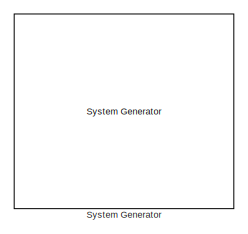
[diagram: root canvas - part 1/14, top left region]
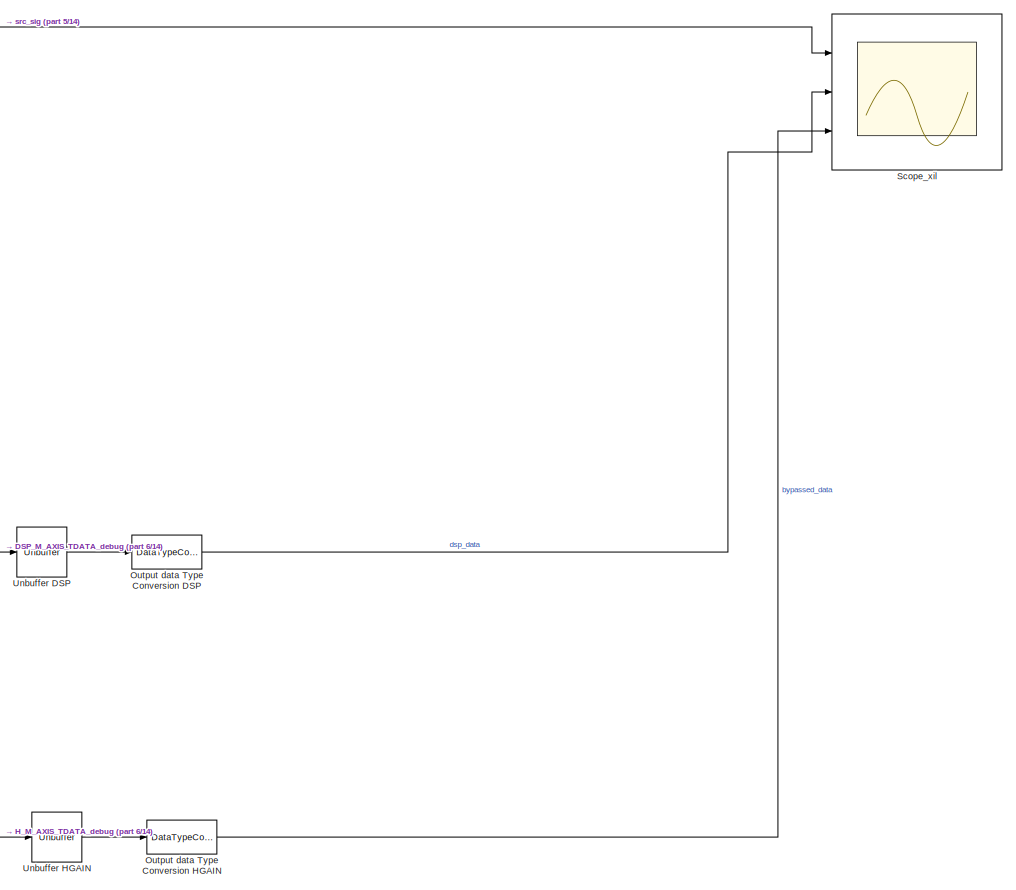
[diagram: root canvas - part 2/14, middle right region]
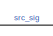
[diagram: root canvas - part 3/14, top center region]
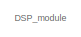
[diagram: root canvas - part 4/14, top left region]
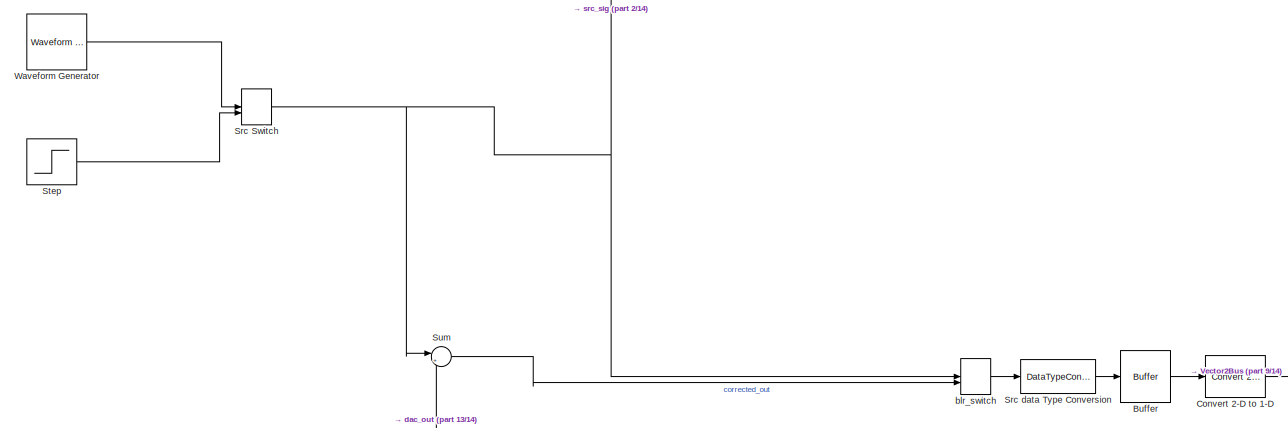
[diagram: root canvas - part 5/14, middle left region]
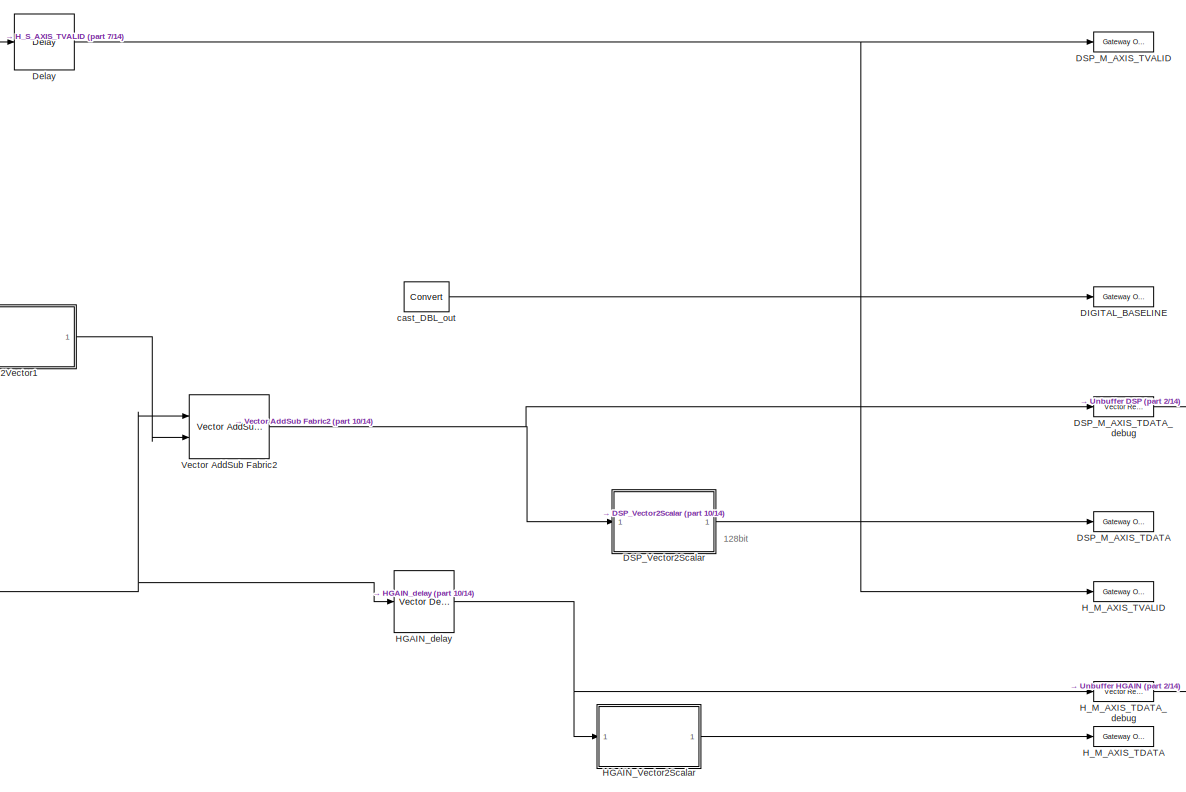
[diagram: root canvas - part 6/14, middle right region]
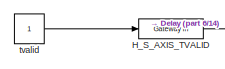
[diagram: root canvas - part 7/14, middle left region]
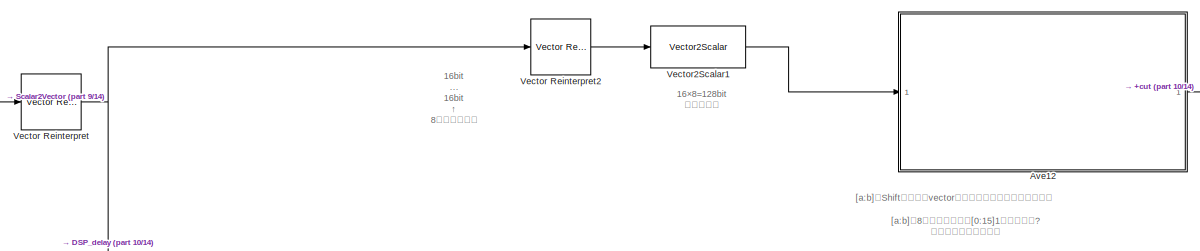
[diagram: root canvas - part 8/14, central region]
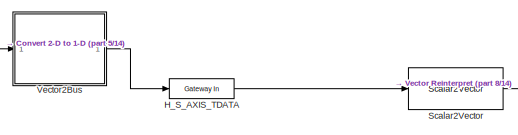
[diagram: root canvas - part 9/14, middle left region]
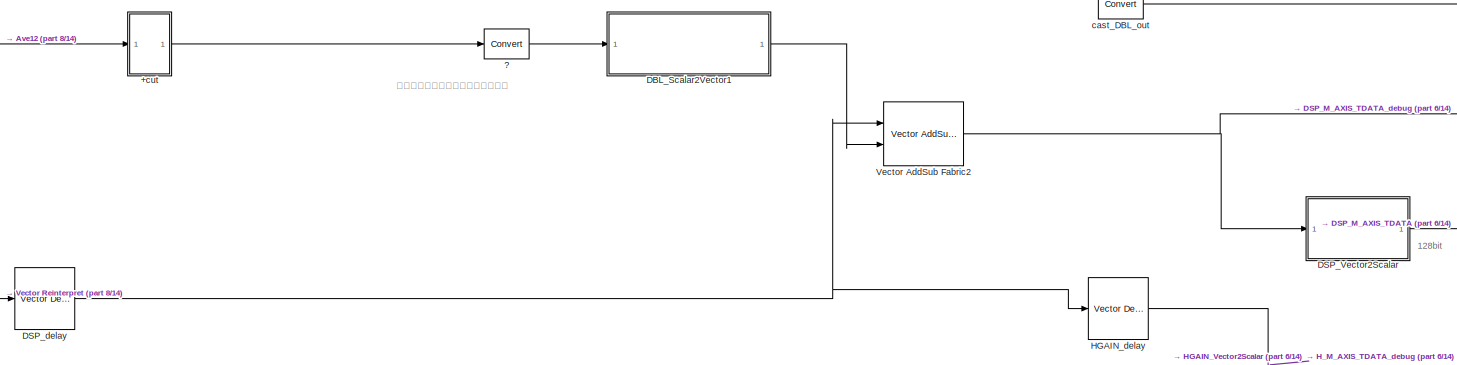
[diagram: root canvas - part 10/14, central region]
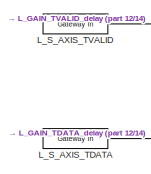
[diagram: root canvas - part 11/14, bottom left region]
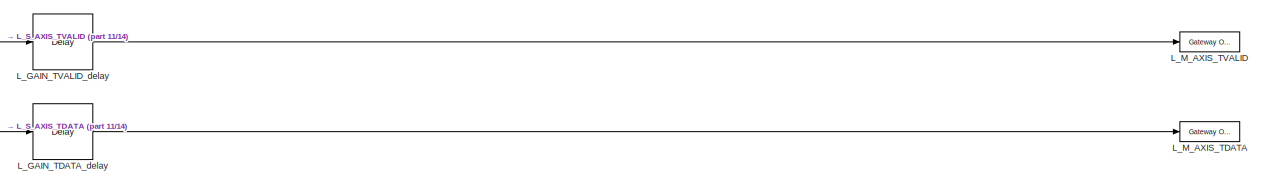
[diagram: root canvas - part 12/14, bottom right region]
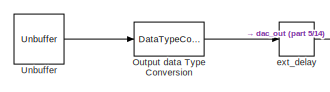
[diagram: root canvas - part 13/14, bottom right region]
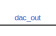
[diagram: root canvas - part 14/14, bottom center region]
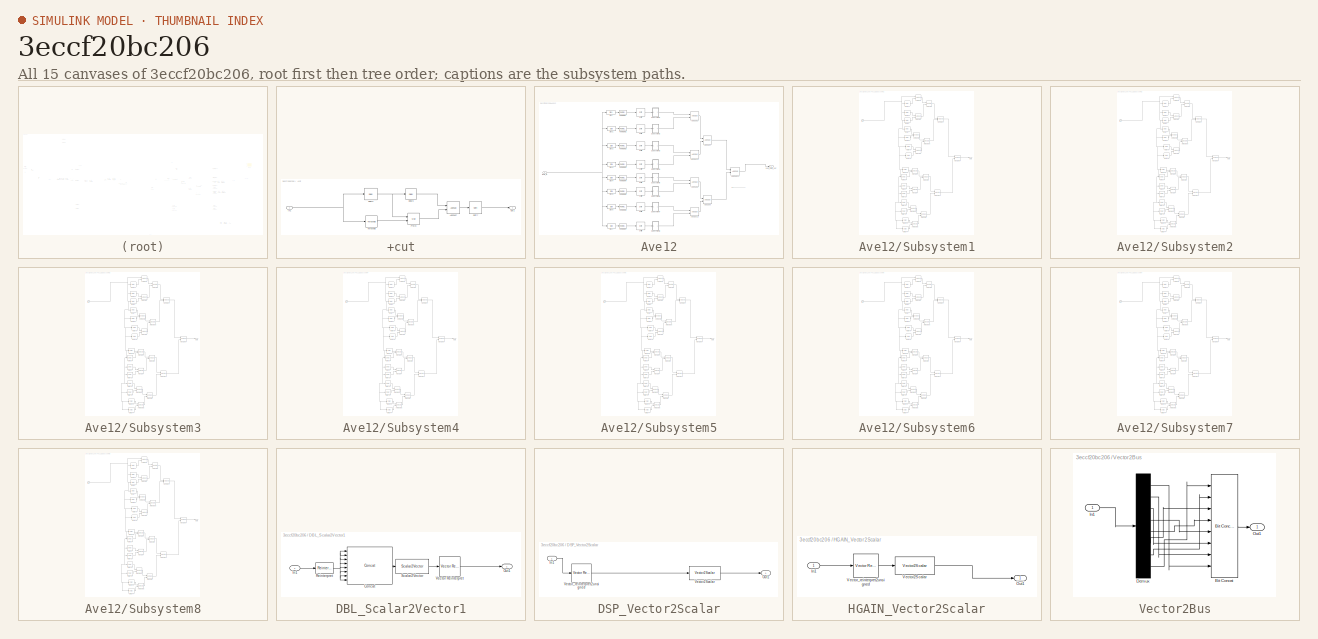
[diagram: thumbnail index - all 15 canvases of the model, root first then tree order]
MODEL slx_3eccf20bc206
KIND model
CONFIG AbsTol = auto
CONFIG EnableMultiTasking = off
CONFIG FixedStep = auto
CONFIG MaxStep = auto
CONFIG MinStep = auto
CONFIG RelTol = 1e-3
CONFIG SampleTimeConstraint = Unconstrained
CONFIG Solver = VariableStepAuto
CONFIG SolverName = VariableStepAuto
CONFIG StartTime = 0.0
CONFIG StopTime = 100e-6
BLOCK [Reference]  System Generator  REF=xbsIndex_r4/ System Generator
  AttributesFormatString = System\nGenerator
  Ports = []
  SourceBlock = xbsIndex_r4/ System Generator
  SourceType = Xilinx System Generator Block
  Tag = genX
  UserDataPersistent = on
BLOCK [SubSystem] +cut
  Ports = [1, 1]
  RequestExecContextInheritance = off
BLOCK [Reference] +cut/AddSub7  REF=xbsIndex_r4/AddSub
  Ports = [2, 1]
  SourceBlock = xbsIndex_r4/AddSub
  SourceType = Xilinx Adder/Subtracter Block
BLOCK [Reference] +cut/Delay2  REF=xbsIndex_r4/Delay
  Ports = [1, 1]
  SourceBlock = xbsIndex_r4/Delay
  SourceType = Xilinx Delay Block
BLOCK [Reference] +cut/Delay3  REF=xbsIndex_r4/Delay
  Ports = [1, 1]
  SourceBlock = xbsIndex_r4/Delay
  SourceType = Xilinx Delay Block
BLOCK [Inport] +cut/In1
  IconDisplay = Port number
BLOCK [Outport] +cut/Out1
  IconDisplay = Port number
BLOCK [Reference] +cut/P*e[n]  REF=xbsIndex_r4/Mult
  Ports = [2, 1]
  SourceBlock = xbsIndex_r4/Mult
  SourceType = Xilinx Multiplier Block
BLOCK [Reference] +cut/Shift7  REF=xbsIndex_r4/Shift
  Ports = [1, 1]
  SourceBlock = xbsIndex_r4/Shift
  SourceType = Xilinx Binary Shift Operator Block
BLOCK [Reference] +cut/Threshold  REF=xbsIndex_r4/Threshold
  Ports = [1, 1]
  SourceBlock = xbsIndex_r4/Threshold
  SourceType = Xilinx Threshold Block
BLOCK [Reference] ?  REF=xbsIndex_r4/Convert
  Ports = [1, 1]
  SourceBlock = xbsIndex_r4/Convert
  SourceType = Xilinx Type Converter Block
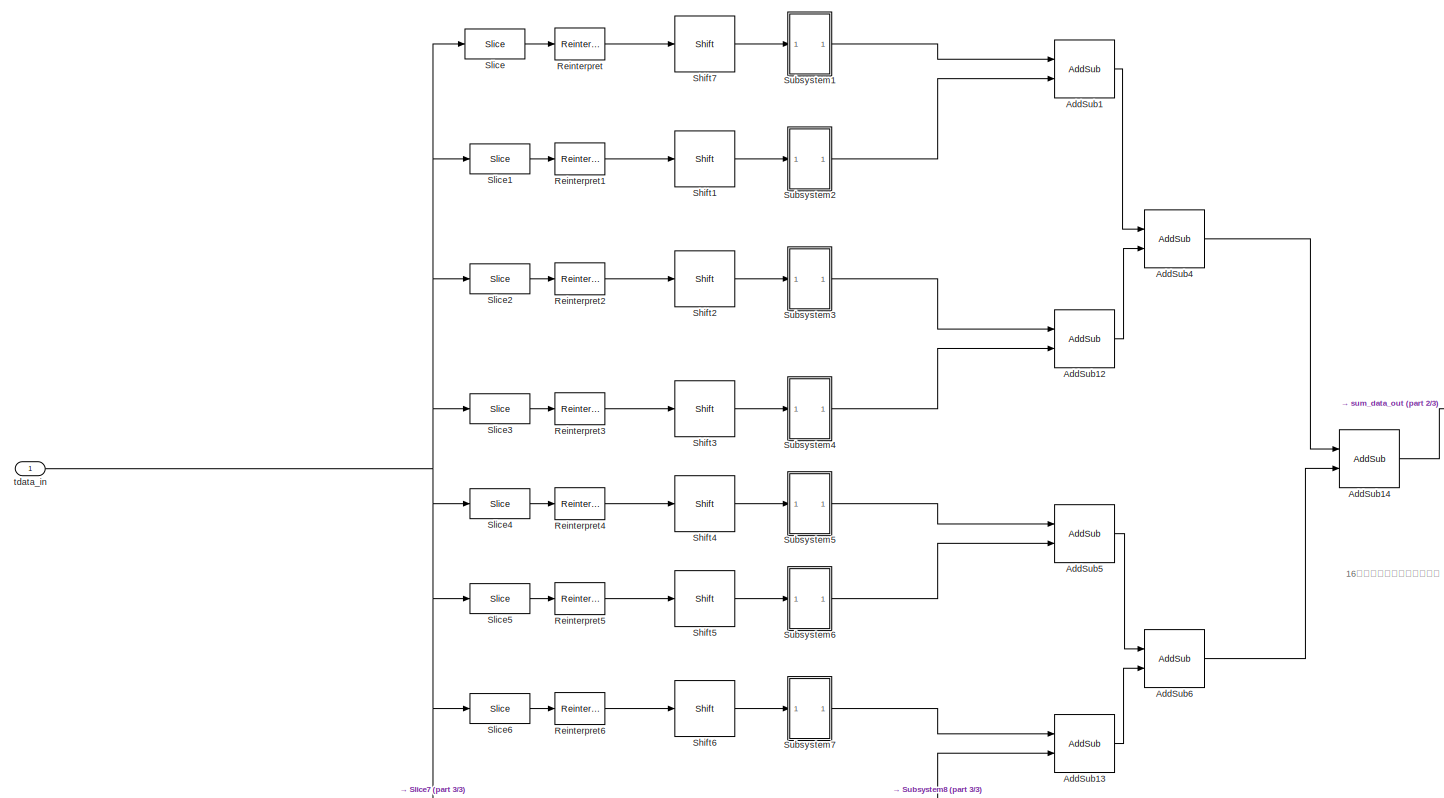
[diagram: Ave12 - part 1/3, most of the canvas]
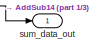
[diagram: Ave12 - part 2/3, middle right region]
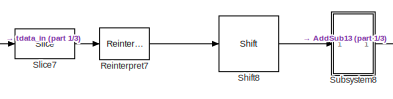
[diagram: Ave12 - part 3/3, bottom center region]
BLOCK [SubSystem] Ave12
  Ports = [1, 1]
  RequestExecContextInheritance = off
BLOCK [Reference] Ave12/AddSub1  REF=xbsIndex_r4/AddSub
  Ports = [2, 1]
  SourceBlock = xbsIndex_r4/AddSub
  SourceType = Xilinx Adder/Subtracter Block
BLOCK [Reference] Ave12/AddSub12  REF=xbsIndex_r4/AddSub
  Ports = [2, 1]
  SourceBlock = xbsIndex_r4/AddSub
  SourceType = Xilinx Adder/Subtracter Block
BLOCK [Reference] Ave12/AddSub13  REF=xbsIndex_r4/AddSub
  Ports = [2, 1]
  SourceBlock = xbsIndex_r4/AddSub
  SourceType = Xilinx Adder/Subtracter Block
BLOCK [Reference] Ave12/AddSub14  REF=xbsIndex_r4/AddSub
  Ports = [2, 1]
  SourceBlock = xbsIndex_r4/AddSub
  SourceType = Xilinx Adder/Subtracter Block
BLOCK [Reference] Ave12/AddSub4  REF=xbsIndex_r4/AddSub
  Ports = [2, 1]
  SourceBlock = xbsIndex_r4/AddSub
  SourceType = Xilinx Adder/Subtracter Block
BLOCK [Reference] Ave12/AddSub5  REF=xbsIndex_r4/AddSub
  Ports = [2, 1]
  SourceBlock = xbsIndex_r4/AddSub
  SourceType = Xilinx Adder/Subtracter Block
BLOCK [Reference] Ave12/AddSub6  REF=xbsIndex_r4/AddSub
  Ports = [2, 1]
  SourceBlock = xbsIndex_r4/AddSub
  SourceType = Xilinx Adder/Subtracter Block
BLOCK [Reference] Ave12/Reinterpret  REF=xbsIndex_r4/Reinterpret
  Ports = [1, 1]
  SourceBlock = xbsIndex_r4/Reinterpret
  SourceType = Xilinx Type Reinterpreter Block
BLOCK [Reference] Ave12/Reinterpret1  REF=xbsIndex_r4/Reinterpret
  Ports = [1, 1]
  SourceBlock = xbsIndex_r4/Reinterpret
  SourceType = Xilinx Type Reinterpreter Block
BLOCK [Reference] Ave12/Reinterpret2  REF=xbsIndex_r4/Reinterpret
  Ports = [1, 1]
  SourceBlock = xbsIndex_r4/Reinterpret
  SourceType = Xilinx Type Reinterpreter Block
BLOCK [Reference] Ave12/Reinterpret3  REF=xbsIndex_r4/Reinterpret
  Ports = [1, 1]
  SourceBlock = xbsIndex_r4/Reinterpret
  SourceType = Xilinx Type Reinterpreter Block
BLOCK [Reference] Ave12/Reinterpret4  REF=xbsIndex_r4/Reinterpret
  Ports = [1, 1]
  SourceBlock = xbsIndex_r4/Reinterpret
  SourceType = Xilinx Type Reinterpreter Block
BLOCK [Reference] Ave12/Reinterpret5  REF=xbsIndex_r4/Reinterpret
  Ports = [1, 1]
  SourceBlock = xbsIndex_r4/Reinterpret
  SourceType = Xilinx Type Reinterpreter Block
BLOCK [Reference] Ave12/Reinterpret6  REF=xbsIndex_r4/Reinterpret
  Ports = [1, 1]
  SourceBlock = xbsIndex_r4/Reinterpret
  SourceType = Xilinx Type Reinterpreter Block
BLOCK [Reference] Ave12/Reinterpret7  REF=xbsIndex_r4/Reinterpret
  Ports = [1, 1]
  SourceBlock = xbsIndex_r4/Reinterpret
  SourceType = Xilinx Type Reinterpreter Block
BLOCK [Reference] Ave12/Shift1  REF=xbsIndex_r4/Shift
  Ports = [1, 1]
  SourceBlock = xbsIndex_r4/Shift
  SourceType = Xilinx Binary Shift Operator Block
BLOCK [Reference] Ave12/Shift2  REF=xbsIndex_r4/Shift
  Ports = [1, 1]
  SourceBlock = xbsIndex_r4/Shift
  SourceType = Xilinx Binary Shift Operator Block
BLOCK [Reference] Ave12/Shift3  REF=xbsIndex_r4/Shift
  Ports = [1, 1]
  SourceBlock = xbsIndex_r4/Shift
  SourceType = Xilinx Binary Shift Operator Block
BLOCK [Reference] Ave12/Shift4  REF=xbsIndex_r4/Shift
  Ports = [1, 1]
  SourceBlock = xbsIndex_r4/Shift
  SourceType = Xilinx Binary Shift Operator Block
BLOCK [Reference] Ave12/Shift5  REF=xbsIndex_r4/Shift
  Ports = [1, 1]
  SourceBlock = xbsIndex_r4/Shift
  SourceType = Xilinx Binary Shift Operator Block
BLOCK [Reference] Ave12/Shift6  REF=xbsIndex_r4/Shift
  Ports = [1, 1]
  SourceBlock = xbsIndex_r4/Shift
  SourceType = Xilinx Binary Shift Operator Block
BLOCK [Reference] Ave12/Shift7  REF=xbsIndex_r4/Shift
  Ports = [1, 1]
  SourceBlock = xbsIndex_r4/Shift
  SourceType = Xilinx Binary Shift Operator Block
BLOCK [Reference] Ave12/Shift8  REF=xbsIndex_r4/Shift
  Ports = [1, 1]
  SourceBlock = xbsIndex_r4/Shift
  SourceType = Xilinx Binary Shift Operator Block
BLOCK [Reference] Ave12/Slice  REF=xbsIndex_r4/Slice
  Ports = [1, 1]
  SourceBlock = xbsIndex_r4/Slice
  SourceType = Xilinx Bit Slice Extractor Block
BLOCK [Reference] Ave12/Slice1  REF=xbsIndex_r4/Slice
  Ports = [1, 1]
  SourceBlock = xbsIndex_r4/Slice
  SourceType = Xilinx Bit Slice Extractor Block
BLOCK [Reference] Ave12/Slice2  REF=xbsIndex_r4/Slice
  Ports = [1, 1]
  SourceBlock = xbsIndex_r4/Slice
  SourceType = Xilinx Bit Slice Extractor Block
BLOCK [Reference] Ave12/Slice3  REF=xbsIndex_r4/Slice
  Ports = [1, 1]
  SourceBlock = xbsIndex_r4/Slice
  SourceType = Xilinx Bit Slice Extractor Block
BLOCK [Reference] Ave12/Slice4  REF=xbsIndex_r4/Slice
  Ports = [1, 1]
  SourceBlock = xbsIndex_r4/Slice
  SourceType = Xilinx Bit Slice Extractor Block
BLOCK [Reference] Ave12/Slice5  REF=xbsIndex_r4/Slice
  Ports = [1, 1]
  SourceBlock = xbsIndex_r4/Slice
  SourceType = Xilinx Bit Slice Extractor Block
BLOCK [Reference] Ave12/Slice6  REF=xbsIndex_r4/Slice
  Ports = [1, 1]
  SourceBlock = xbsIndex_r4/Slice
  SourceType = Xilinx Bit Slice Extractor Block
BLOCK [Reference] Ave12/Slice7  REF=xbsIndex_r4/Slice
  Ports = [1, 1]
  SourceBlock = xbsIndex_r4/Slice
  SourceType = Xilinx Bit Slice Extractor Block
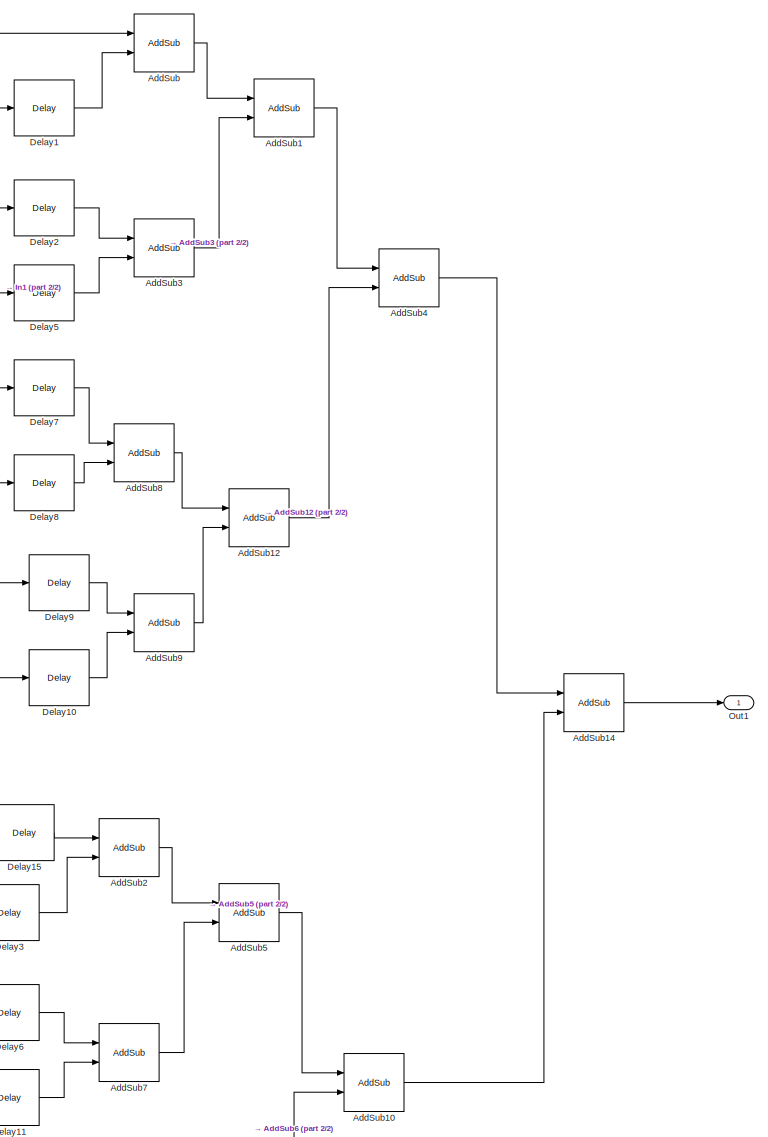
[diagram: Ave12/Subsystem1 - part 1/2, right side, full height]
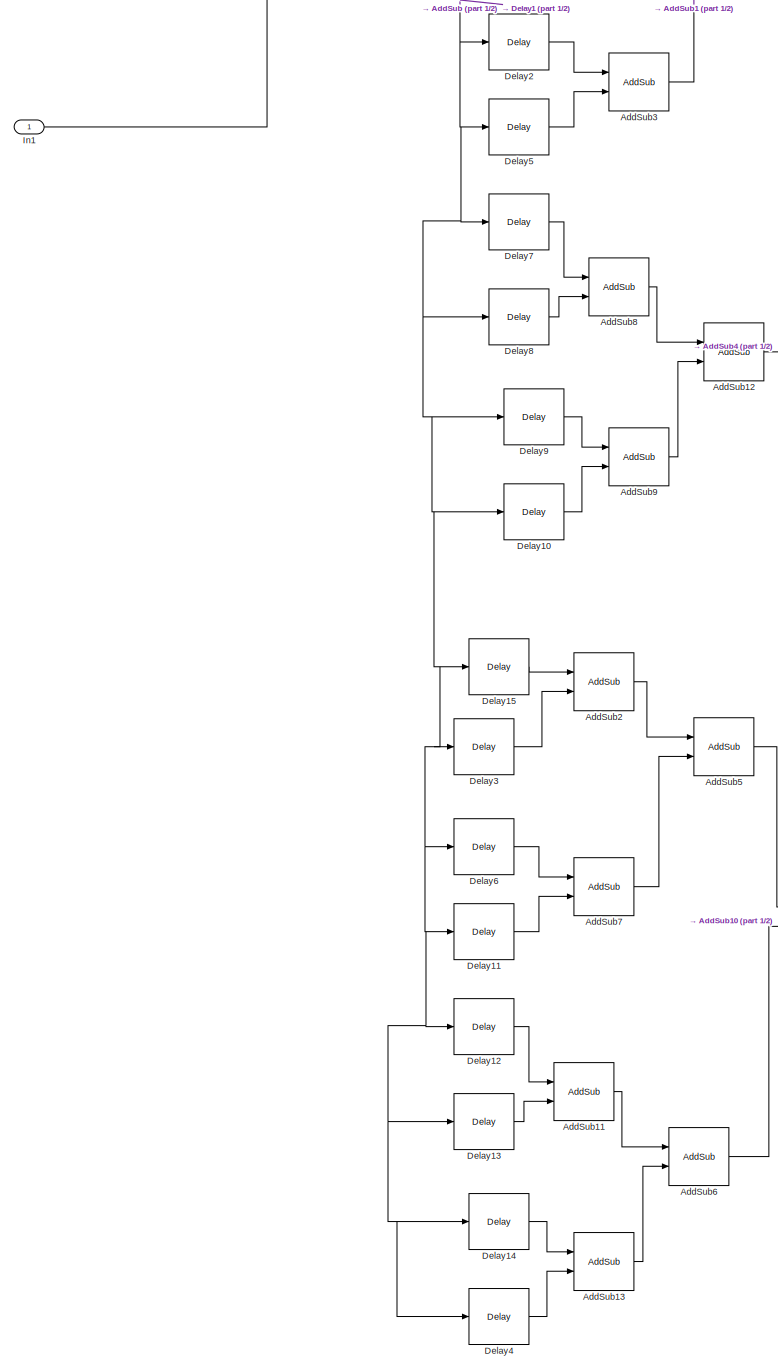
[diagram: Ave12/Subsystem1 - part 2/2, left side, full height]
BLOCK [SubSystem] Ave12/Subsystem1
  Ports = [1, 1]
  RequestExecContextInheritance = off
BLOCK [Reference] Ave12/Subsystem1/AddSub  REF=xbsIndex_r4/AddSub
  Ports = [2, 1]
  SourceBlock = xbsIndex_r4/AddSub
  SourceType = Xilinx Adder/Subtracter Block
BLOCK [Reference] Ave12/Subsystem1/AddSub1  REF=xbsIndex_r4/AddSub
  Ports = [2, 1]
  SourceBlock = xbsIndex_r4/AddSub
  SourceType = Xilinx Adder/Subtracter Block
BLOCK [Reference] Ave12/Subsystem1/AddSub10  REF=xbsIndex_r4/AddSub
  Ports = [2, 1]
  SourceBlock = xbsIndex_r4/AddSub
  SourceType = Xilinx Adder/Subtracter Block
BLOCK [Reference] Ave12/Subsystem1/AddSub11  REF=xbsIndex_r4/AddSub
  Ports = [2, 1]
  SourceBlock = xbsIndex_r4/AddSub
  SourceType = Xilinx Adder/Subtracter Block
BLOCK [Reference] Ave12/Subsystem1/AddSub12  REF=xbsIndex_r4/AddSub
  Ports = [2, 1]
  SourceBlock = xbsIndex_r4/AddSub
  SourceType = Xilinx Adder/Subtracter Block
BLOCK [Reference] Ave12/Subsystem1/AddSub13  REF=xbsIndex_r4/AddSub
  Ports = [2, 1]
  SourceBlock = xbsIndex_r4/AddSub
  SourceType = Xilinx Adder/Subtracter Block
BLOCK [Reference] Ave12/Subsystem1/AddSub14  REF=xbsIndex_r4/AddSub
  Ports = [2, 1]
  SourceBlock = xbsIndex_r4/AddSub
  SourceType = Xilinx Adder/Subtracter Block
BLOCK [Reference] Ave12/Subsystem1/AddSub2  REF=xbsIndex_r4/AddSub
  Ports = [2, 1]
  SourceBlock = xbsIndex_r4/AddSub
  SourceType = Xilinx Adder/Subtracter Block
BLOCK [Reference] Ave12/Subsystem1/AddSub3  REF=xbsIndex_r4/AddSub
  Ports = [2, 1]
  SourceBlock = xbsIndex_r4/AddSub
  SourceType = Xilinx Adder/Subtracter Block
BLOCK [Reference] Ave12/Subsystem1/AddSub4  REF=xbsIndex_r4/AddSub
  Ports = [2, 1]
  SourceBlock = xbsIndex_r4/AddSub
  SourceType = Xilinx Adder/Subtracter Block
BLOCK [Reference] Ave12/Subsystem1/AddSub5  REF=xbsIndex_r4/AddSub
  Ports = [2, 1]
  SourceBlock = xbsIndex_r4/AddSub
  SourceType = Xilinx Adder/Subtracter Block
BLOCK [Reference] Ave12/Subsystem1/AddSub6  REF=xbsIndex_r4/AddSub
  Ports = [2, 1]
  SourceBlock = xbsIndex_r4/AddSub
  SourceType = Xilinx Adder/Subtracter Block
BLOCK [Reference] Ave12/Subsystem1/AddSub7  REF=xbsIndex_r4/AddSub
  Ports = [2, 1]
  SourceBlock = xbsIndex_r4/AddSub
  SourceType = Xilinx Adder/Subtracter Block
BLOCK [Reference] Ave12/Subsystem1/AddSub8  REF=xbsIndex_r4/AddSub
  Ports = [2, 1]
  SourceBlock = xbsIndex_r4/AddSub
  SourceType = Xilinx Adder/Subtracter Block
BLOCK [Reference] Ave12/Subsystem1/AddSub9  REF=xbsIndex_r4/AddSub
  Ports = [2, 1]
  SourceBlock = xbsIndex_r4/AddSub
  SourceType = Xilinx Adder/Subtracter Block
BLOCK [Reference] Ave12/Subsystem1/Delay1  REF=xbsIndex_r4/Delay
  Ports = [1, 1]
  SourceBlock = xbsIndex_r4/Delay
  SourceType = Xilinx Delay Block
BLOCK [Reference] Ave12/Subsystem1/Delay10  REF=xbsIndex_r4/Delay
  Ports = [1, 1]
  SourceBlock = xbsIndex_r4/Delay
  SourceType = Xilinx Delay Block
BLOCK [Reference] Ave12/Subsystem1/Delay11  REF=xbsIndex_r4/Delay
  Ports = [1, 1]
  SourceBlock = xbsIndex_r4/Delay
  SourceType = Xilinx Delay Block
BLOCK [Reference] Ave12/Subsystem1/Delay12  REF=xbsIndex_r4/Delay
  Ports = [1, 1]
  SourceBlock = xbsIndex_r4/Delay
  SourceType = Xilinx Delay Block
BLOCK [Reference] Ave12/Subsystem1/Delay13  REF=xbsIndex_r4/Delay
  Ports = [1, 1]
  SourceBlock = xbsIndex_r4/Delay
  SourceType = Xilinx Delay Block
BLOCK [Reference] Ave12/Subsystem1/Delay14  REF=xbsIndex_r4/Delay
  Ports = [1, 1]
  SourceBlock = xbsIndex_r4/Delay
  SourceType = Xilinx Delay Block
BLOCK [Reference] Ave12/Subsystem1/Delay15  REF=xbsIndex_r4/Delay
  Ports = [1, 1]
  SourceBlock = xbsIndex_r4/Delay
  SourceType = Xilinx Delay Block
BLOCK [Reference] Ave12/Subsystem1/Delay2  REF=xbsIndex_r4/Delay
  Ports = [1, 1]
  SourceBlock = xbsIndex_r4/Delay
  SourceType = Xilinx Delay Block
BLOCK [Reference] Ave12/Subsystem1/Delay3  REF=xbsIndex_r4/Delay
  Ports = [1, 1]
  SourceBlock = xbsIndex_r4/Delay
  SourceType = Xilinx Delay Block
BLOCK [Reference] Ave12/Subsystem1/Delay4  REF=xbsIndex_r4/Delay
  Ports = [1, 1]
  SourceBlock = xbsIndex_r4/Delay
  SourceType = Xilinx Delay Block
BLOCK [Reference] Ave12/Subsystem1/Delay5  REF=xbsIndex_r4/Delay
  Ports = [1, 1]
  SourceBlock = xbsIndex_r4/Delay
  SourceType = Xilinx Delay Block
BLOCK [Reference] Ave12/Subsystem1/Delay6  REF=xbsIndex_r4/Delay
  Ports = [1, 1]
  SourceBlock = xbsIndex_r4/Delay
  SourceType = Xilinx Delay Block
BLOCK [Reference] Ave12/Subsystem1/Delay7  REF=xbsIndex_r4/Delay
  Ports = [1, 1]
  SourceBlock = xbsIndex_r4/Delay
  SourceType = Xilinx Delay Block
BLOCK [Reference] Ave12/Subsystem1/Delay8  REF=xbsIndex_r4/Delay
  Ports = [1, 1]
  SourceBlock = xbsIndex_r4/Delay
  SourceType = Xilinx Delay Block
BLOCK [Reference] Ave12/Subsystem1/Delay9  REF=xbsIndex_r4/Delay
  Ports = [1, 1]
  SourceBlock = xbsIndex_r4/Delay
  SourceType = Xilinx Delay Block
BLOCK [Inport] Ave12/Subsystem1/In1
  IconDisplay = Port number
BLOCK [Outport] Ave12/Subsystem1/Out1
  IconDisplay = Port number
BLOCK [SubSystem] Ave12/Subsystem2
  Ports = [1, 1]
  RequestExecContextInheritance = off
BLOCK [Reference] Ave12/Subsystem2/AddSub  REF=xbsIndex_r4/AddSub
  Ports = [2, 1]
  SourceBlock = xbsIndex_r4/AddSub
  SourceType = Xilinx Adder/Subtracter Block
BLOCK [Reference] Ave12/Subsystem2/AddSub1  REF=xbsIndex_r4/AddSub
  Ports = [2, 1]
  SourceBlock = xbsIndex_r4/AddSub
  SourceType = Xilinx Adder/Subtracter Block
BLOCK [Reference] Ave12/Subsystem2/AddSub10  REF=xbsIndex_r4/AddSub
  Ports = [2, 1]
  SourceBlock = xbsIndex_r4/AddSub
  SourceType = Xilinx Adder/Subtracter Block
BLOCK [Reference] Ave12/Subsystem2/AddSub11  REF=xbsIndex_r4/AddSub
  Ports = [2, 1]
  SourceBlock = xbsIndex_r4/AddSub
  SourceType = Xilinx Adder/Subtracter Block
BLOCK [Reference] Ave12/Subsystem2/AddSub12  REF=xbsIndex_r4/AddSub
  Ports = [2, 1]
  SourceBlock = xbsIndex_r4/AddSub
  SourceType = Xilinx Adder/Subtracter Block
BLOCK [Reference] Ave12/Subsystem2/AddSub13  REF=xbsIndex_r4/AddSub
  Ports = [2, 1]
  SourceBlock = xbsIndex_r4/AddSub
  SourceType = Xilinx Adder/Subtracter Block
BLOCK [Reference] Ave12/Subsystem2/AddSub14  REF=xbsIndex_r4/AddSub
  Ports = [2, 1]
  SourceBlock = xbsIndex_r4/AddSub
  SourceType = Xilinx Adder/Subtracter Block
BLOCK [Reference] Ave12/Subsystem2/AddSub2  REF=xbsIndex_r4/AddSub
  Ports = [2, 1]
  SourceBlock = xbsIndex_r4/AddSub
  SourceType = Xilinx Adder/Subtracter Block
BLOCK [Reference] Ave12/Subsystem2/AddSub3  REF=xbsIndex_r4/AddSub
  Ports = [2, 1]
  SourceBlock = xbsIndex_r4/AddSub
  SourceType = Xilinx Adder/Subtracter Block
BLOCK [Reference] Ave12/Subsystem2/AddSub4  REF=xbsIndex_r4/AddSub
  Ports = [2, 1]
  SourceBlock = xbsIndex_r4/AddSub
  SourceType = Xilinx Adder/Subtracter Block
BLOCK [Reference] Ave12/Subsystem2/AddSub5  REF=xbsIndex_r4/AddSub
  Ports = [2, 1]
  SourceBlock = xbsIndex_r4/AddSub
  SourceType = Xilinx Adder/Subtracter Block
BLOCK [Reference] Ave12/Subsystem2/AddSub6  REF=xbsIndex_r4/AddSub
  Ports = [2, 1]
  SourceBlock = xbsIndex_r4/AddSub
  SourceType = Xilinx Adder/Subtracter Block
BLOCK [Reference] Ave12/Subsystem2/AddSub7  REF=xbsIndex_r4/AddSub
  Ports = [2, 1]
  SourceBlock = xbsIndex_r4/AddSub
  SourceType = Xilinx Adder/Subtracter Block
BLOCK [Reference] Ave12/Subsystem2/AddSub8  REF=xbsIndex_r4/AddSub
  Ports = [2, 1]
  SourceBlock = xbsIndex_r4/AddSub
  SourceType = Xilinx Adder/Subtracter Block
BLOCK [Reference] Ave12/Subsystem2/AddSub9  REF=xbsIndex_r4/AddSub
  Ports = [2, 1]
  SourceBlock = xbsIndex_r4/AddSub
  SourceType = Xilinx Adder/Subtracter Block
BLOCK [Reference] Ave12/Subsystem2/Delay1  REF=xbsIndex_r4/Delay
  Ports = [1, 1]
  SourceBlock = xbsIndex_r4/Delay
  SourceType = Xilinx Delay Block
BLOCK [Reference] Ave12/Subsystem2/Delay10  REF=xbsIndex_r4/Delay
  Ports = [1, 1]
  SourceBlock = xbsIndex_r4/Delay
  SourceType = Xilinx Delay Block
BLOCK [Reference] Ave12/Subsystem2/Delay11  REF=xbsIndex_r4/Delay
  Ports = [1, 1]
  SourceBlock = xbsIndex_r4/Delay
  SourceType = Xilinx Delay Block
BLOCK [Reference] Ave12/Subsystem2/Delay12  REF=xbsIndex_r4/Delay
  Ports = [1, 1]
  SourceBlock = xbsIndex_r4/Delay
  SourceType = Xilinx Delay Block
BLOCK [Reference] Ave12/Subsystem2/Delay13  REF=xbsIndex_r4/Delay
  Ports = [1, 1]
  SourceBlock = xbsIndex_r4/Delay
  SourceType = Xilinx Delay Block
BLOCK [Reference] Ave12/Subsystem2/Delay14  REF=xbsIndex_r4/Delay
  Ports = [1, 1]
  SourceBlock = xbsIndex_r4/Delay
  SourceType = Xilinx Delay Block
BLOCK [Reference] Ave12/Subsystem2/Delay15  REF=xbsIndex_r4/Delay
  Ports = [1, 1]
  SourceBlock = xbsIndex_r4/Delay
  SourceType = Xilinx Delay Block
BLOCK [Reference] Ave12/Subsystem2/Delay2  REF=xbsIndex_r4/Delay
  Ports = [1, 1]
  SourceBlock = xbsIndex_r4/Delay
  SourceType = Xilinx Delay Block
BLOCK [Reference] Ave12/Subsystem2/Delay3  REF=xbsIndex_r4/Delay
  Ports = [1, 1]
  SourceBlock = xbsIndex_r4/Delay
  SourceType = Xilinx Delay Block
BLOCK [Reference] Ave12/Subsystem2/Delay4  REF=xbsIndex_r4/Delay
  Ports = [1, 1]
  SourceBlock = xbsIndex_r4/Delay
  SourceType = Xilinx Delay Block
BLOCK [Reference] Ave12/Subsystem2/Delay5  REF=xbsIndex_r4/Delay
  Ports = [1, 1]
  SourceBlock = xbsIndex_r4/Delay
  SourceType = Xilinx Delay Block
BLOCK [Reference] Ave12/Subsystem2/Delay6  REF=xbsIndex_r4/Delay
  Ports = [1, 1]
  SourceBlock = xbsIndex_r4/Delay
  SourceType = Xilinx Delay Block
BLOCK [Reference] Ave12/Subsystem2/Delay7  REF=xbsIndex_r4/Delay
  Ports = [1, 1]
  SourceBlock = xbsIndex_r4/Delay
  SourceType = Xilinx Delay Block
BLOCK [Reference] Ave12/Subsystem2/Delay8  REF=xbsIndex_r4/Delay
  Ports = [1, 1]
  SourceBlock = xbsIndex_r4/Delay
  SourceType = Xilinx Delay Block
BLOCK [Reference] Ave12/Subsystem2/Delay9  REF=xbsIndex_r4/Delay
  Ports = [1, 1]
  SourceBlock = xbsIndex_r4/Delay
  SourceType = Xilinx Delay Block
BLOCK [Inport] Ave12/Subsystem2/In1
  IconDisplay = Port number
BLOCK [Outport] Ave12/Subsystem2/Out1
  IconDisplay = Port number
BLOCK [SubSystem] Ave12/Subsystem3
  Ports = [1, 1]
  RequestExecContextInheritance = off
BLOCK [Reference] Ave12/Subsystem3/AddSub  REF=xbsIndex_r4/AddSub
  Ports = [2, 1]
  SourceBlock = xbsIndex_r4/AddSub
  SourceType = Xilinx Adder/Subtracter Block
BLOCK [Reference] Ave12/Subsystem3/AddSub1  REF=xbsIndex_r4/AddSub
  Ports = [2, 1]
  SourceBlock = xbsIndex_r4/AddSub
  SourceType = Xilinx Adder/Subtracter Block
BLOCK [Reference] Ave12/Subsystem3/AddSub10  REF=xbsIndex_r4/AddSub
  Ports = [2, 1]
  SourceBlock = xbsIndex_r4/AddSub
  SourceType = Xilinx Adder/Subtracter Block
BLOCK [Reference] Ave12/Subsystem3/AddSub11  REF=xbsIndex_r4/AddSub
  Ports = [2, 1]
  SourceBlock = xbsIndex_r4/AddSub
  SourceType = Xilinx Adder/Subtracter Block
BLOCK [Reference] Ave12/Subsystem3/AddSub12  REF=xbsIndex_r4/AddSub
  Ports = [2, 1]
  SourceBlock = xbsIndex_r4/AddSub
  SourceType = Xilinx Adder/Subtracter Block
BLOCK [Reference] Ave12/Subsystem3/AddSub13  REF=xbsIndex_r4/AddSub
  Ports = [2, 1]
  SourceBlock = xbsIndex_r4/AddSub
  SourceType = Xilinx Adder/Subtracter Block
BLOCK [Reference] Ave12/Subsystem3/AddSub14  REF=xbsIndex_r4/AddSub
  Ports = [2, 1]
  SourceBlock = xbsIndex_r4/AddSub
  SourceType = Xilinx Adder/Subtracter Block
BLOCK [Reference] Ave12/Subsystem3/AddSub2  REF=xbsIndex_r4/AddSub
  Ports = [2, 1]
  SourceBlock = xbsIndex_r4/AddSub
  SourceType = Xilinx Adder/Subtracter Block
BLOCK [Reference] Ave12/Subsystem3/AddSub3  REF=xbsIndex_r4/AddSub
  Ports = [2, 1]
  SourceBlock = xbsIndex_r4/AddSub
  SourceType = Xilinx Adder/Subtracter Block
BLOCK [Reference] Ave12/Subsystem3/AddSub4  REF=xbsIndex_r4/AddSub
  Ports = [2, 1]
  SourceBlock = xbsIndex_r4/AddSub
  SourceType = Xilinx Adder/Subtracter Block
BLOCK [Reference] Ave12/Subsystem3/AddSub5  REF=xbsIndex_r4/AddSub
  Ports = [2, 1]
  SourceBlock = xbsIndex_r4/AddSub
  SourceType = Xilinx Adder/Subtracter Block
BLOCK [Reference] Ave12/Subsystem3/AddSub6  REF=xbsIndex_r4/AddSub
  Ports = [2, 1]
  SourceBlock = xbsIndex_r4/AddSub
  SourceType = Xilinx Adder/Subtracter Block
BLOCK [Reference] Ave12/Subsystem3/AddSub7  REF=xbsIndex_r4/AddSub
  Ports = [2, 1]
  SourceBlock = xbsIndex_r4/AddSub
  SourceType = Xilinx Adder/Subtracter Block
BLOCK [Reference] Ave12/Subsystem3/AddSub8  REF=xbsIndex_r4/AddSub
  Ports = [2, 1]
  SourceBlock = xbsIndex_r4/AddSub
  SourceType = Xilinx Adder/Subtracter Block
BLOCK [Reference] Ave12/Subsystem3/AddSub9  REF=xbsIndex_r4/AddSub
  Ports = [2, 1]
  SourceBlock = xbsIndex_r4/AddSub
  SourceType = Xilinx Adder/Subtracter Block
BLOCK [Reference] Ave12/Subsystem3/Delay1  REF=xbsIndex_r4/Delay
  Ports = [1, 1]
  SourceBlock = xbsIndex_r4/Delay
  SourceType = Xilinx Delay Block
BLOCK [Reference] Ave12/Subsystem3/Delay10  REF=xbsIndex_r4/Delay
  Ports = [1, 1]
  SourceBlock = xbsIndex_r4/Delay
  SourceType = Xilinx Delay Block
BLOCK [Reference] Ave12/Subsystem3/Delay11  REF=xbsIndex_r4/Delay
  Ports = [1, 1]
  SourceBlock = xbsIndex_r4/Delay
  SourceType = Xilinx Delay Block
BLOCK [Reference] Ave12/Subsystem3/Delay12  REF=xbsIndex_r4/Delay
  Ports = [1, 1]
  SourceBlock = xbsIndex_r4/Delay
  SourceType = Xilinx Delay Block
BLOCK [Reference] Ave12/Subsystem3/Delay13  REF=xbsIndex_r4/Delay
  Ports = [1, 1]
  SourceBlock = xbsIndex_r4/Delay
  SourceType = Xilinx Delay Block
BLOCK [Reference] Ave12/Subsystem3/Delay14  REF=xbsIndex_r4/Delay
  Ports = [1, 1]
  SourceBlock = xbsIndex_r4/Delay
  SourceType = Xilinx Delay Block
BLOCK [Reference] Ave12/Subsystem3/Delay15  REF=xbsIndex_r4/Delay
  Ports = [1, 1]
  SourceBlock = xbsIndex_r4/Delay
  SourceType = Xilinx Delay Block
BLOCK [Reference] Ave12/Subsystem3/Delay2  REF=xbsIndex_r4/Delay
  Ports = [1, 1]
  SourceBlock = xbsIndex_r4/Delay
  SourceType = Xilinx Delay Block
BLOCK [Reference] Ave12/Subsystem3/Delay3  REF=xbsIndex_r4/Delay
  Ports = [1, 1]
  SourceBlock = xbsIndex_r4/Delay
  SourceType = Xilinx Delay Block
BLOCK [Reference] Ave12/Subsystem3/Delay4  REF=xbsIndex_r4/Delay
  Ports = [1, 1]
  SourceBlock = xbsIndex_r4/Delay
  SourceType = Xilinx Delay Block
BLOCK [Reference] Ave12/Subsystem3/Delay5  REF=xbsIndex_r4/Delay
  Ports = [1, 1]
  SourceBlock = xbsIndex_r4/Delay
  SourceType = Xilinx Delay Block
BLOCK [Reference] Ave12/Subsystem3/Delay6  REF=xbsIndex_r4/Delay
  Ports = [1, 1]
  SourceBlock = xbsIndex_r4/Delay
  SourceType = Xilinx Delay Block
BLOCK [Reference] Ave12/Subsystem3/Delay7  REF=xbsIndex_r4/Delay
  Ports = [1, 1]
  SourceBlock = xbsIndex_r4/Delay
  SourceType = Xilinx Delay Block
BLOCK [Reference] Ave12/Subsystem3/Delay8  REF=xbsIndex_r4/Delay
  Ports = [1, 1]
  SourceBlock = xbsIndex_r4/Delay
  SourceType = Xilinx Delay Block
BLOCK [Reference] Ave12/Subsystem3/Delay9  REF=xbsIndex_r4/Delay
  Ports = [1, 1]
  SourceBlock = xbsIndex_r4/Delay
  SourceType = Xilinx Delay Block
BLOCK [Inport] Ave12/Subsystem3/In1
  IconDisplay = Port number
BLOCK [Outport] Ave12/Subsystem3/Out1
  IconDisplay = Port number
BLOCK [SubSystem] Ave12/Subsystem4
  Ports = [1, 1]
  RequestExecContextInheritance = off
BLOCK [Reference] Ave12/Subsystem4/AddSub  REF=xbsIndex_r4/AddSub
  Ports = [2, 1]
  SourceBlock = xbsIndex_r4/AddSub
  SourceType = Xilinx Adder/Subtracter Block
BLOCK [Reference] Ave12/Subsystem4/AddSub1  REF=xbsIndex_r4/AddSub
  Ports = [2, 1]
  SourceBlock = xbsIndex_r4/AddSub
  SourceType = Xilinx Adder/Subtracter Block
BLOCK [Reference] Ave12/Subsystem4/AddSub10  REF=xbsIndex_r4/AddSub
  Ports = [2, 1]
  SourceBlock = xbsIndex_r4/AddSub
  SourceType = Xilinx Adder/Subtracter Block
BLOCK [Reference] Ave12/Subsystem4/AddSub11  REF=xbsIndex_r4/AddSub
  Ports = [2, 1]
  SourceBlock = xbsIndex_r4/AddSub
  SourceType = Xilinx Adder/Subtracter Block
BLOCK [Reference] Ave12/Subsystem4/AddSub12  REF=xbsIndex_r4/AddSub
  Ports = [2, 1]
  SourceBlock = xbsIndex_r4/AddSub
  SourceType = Xilinx Adder/Subtracter Block
BLOCK [Reference] Ave12/Subsystem4/AddSub13  REF=xbsIndex_r4/AddSub
  Ports = [2, 1]
  SourceBlock = xbsIndex_r4/AddSub
  SourceType = Xilinx Adder/Subtracter Block
BLOCK [Reference] Ave12/Subsystem4/AddSub14  REF=xbsIndex_r4/AddSub
  Ports = [2, 1]
  SourceBlock = xbsIndex_r4/AddSub
  SourceType = Xilinx Adder/Subtracter Block
BLOCK [Reference] Ave12/Subsystem4/AddSub2  REF=xbsIndex_r4/AddSub
  Ports = [2, 1]
  SourceBlock = xbsIndex_r4/AddSub
  SourceType = Xilinx Adder/Subtracter Block
BLOCK [Reference] Ave12/Subsystem4/AddSub3  REF=xbsIndex_r4/AddSub
  Ports = [2, 1]
  SourceBlock = xbsIndex_r4/AddSub
  SourceType = Xilinx Adder/Subtracter Block
BLOCK [Reference] Ave12/Subsystem4/AddSub4  REF=xbsIndex_r4/AddSub
  Ports = [2, 1]
  SourceBlock = xbsIndex_r4/AddSub
  SourceType = Xilinx Adder/Subtracter Block
BLOCK [Reference] Ave12/Subsystem4/AddSub5  REF=xbsIndex_r4/AddSub
  Ports = [2, 1]
  SourceBlock = xbsIndex_r4/AddSub
  SourceType = Xilinx Adder/Subtracter Block
BLOCK [Reference] Ave12/Subsystem4/AddSub6  REF=xbsIndex_r4/AddSub
  Ports = [2, 1]
  SourceBlock = xbsIndex_r4/AddSub
  SourceType = Xilinx Adder/Subtracter Block
BLOCK [Reference] Ave12/Subsystem4/AddSub7  REF=xbsIndex_r4/AddSub
  Ports = [2, 1]
  SourceBlock = xbsIndex_r4/AddSub
  SourceType = Xilinx Adder/Subtracter Block
BLOCK [Reference] Ave12/Subsystem4/AddSub8  REF=xbsIndex_r4/AddSub
  Ports = [2, 1]
  SourceBlock = xbsIndex_r4/AddSub
  SourceType = Xilinx Adder/Subtracter Block
BLOCK [Reference] Ave12/Subsystem4/AddSub9  REF=xbsIndex_r4/AddSub
  Ports = [2, 1]
  SourceBlock = xbsIndex_r4/AddSub
  SourceType = Xilinx Adder/Subtracter Block
BLOCK [Reference] Ave12/Subsystem4/Delay1  REF=xbsIndex_r4/Delay
  Ports = [1, 1]
  SourceBlock = xbsIndex_r4/Delay
  SourceType = Xilinx Delay Block
BLOCK [Reference] Ave12/Subsystem4/Delay10  REF=xbsIndex_r4/Delay
  Ports = [1, 1]
  SourceBlock = xbsIndex_r4/Delay
  SourceType = Xilinx Delay Block
BLOCK [Reference] Ave12/Subsystem4/Delay11  REF=xbsIndex_r4/Delay
  Ports = [1, 1]
  SourceBlock = xbsIndex_r4/Delay
  SourceType = Xilinx Delay Block
BLOCK [Reference] Ave12/Subsystem4/Delay12  REF=xbsIndex_r4/Delay
  Ports = [1, 1]
  SourceBlock = xbsIndex_r4/Delay
  SourceType = Xilinx Delay Block
BLOCK [Reference] Ave12/Subsystem4/Delay13  REF=xbsIndex_r4/Delay
  Ports = [1, 1]
  SourceBlock = xbsIndex_r4/Delay
  SourceType = Xilinx Delay Block
BLOCK [Reference] Ave12/Subsystem4/Delay14  REF=xbsIndex_r4/Delay
  Ports = [1, 1]
  SourceBlock = xbsIndex_r4/Delay
  SourceType = Xilinx Delay Block
BLOCK [Reference] Ave12/Subsystem4/Delay15  REF=xbsIndex_r4/Delay
  Ports = [1, 1]
  SourceBlock = xbsIndex_r4/Delay
  SourceType = Xilinx Delay Block
BLOCK [Reference] Ave12/Subsystem4/Delay2  REF=xbsIndex_r4/Delay
  Ports = [1, 1]
  SourceBlock = xbsIndex_r4/Delay
  SourceType = Xilinx Delay Block
BLOCK [Reference] Ave12/Subsystem4/Delay3  REF=xbsIndex_r4/Delay
  Ports = [1, 1]
  SourceBlock = xbsIndex_r4/Delay
  SourceType = Xilinx Delay Block
BLOCK [Reference] Ave12/Subsystem4/Delay4  REF=xbsIndex_r4/Delay
  Ports = [1, 1]
  SourceBlock = xbsIndex_r4/Delay
  SourceType = Xilinx Delay Block
BLOCK [Reference] Ave12/Subsystem4/Delay5  REF=xbsIndex_r4/Delay
  Ports = [1, 1]
  SourceBlock = xbsIndex_r4/Delay
  SourceType = Xilinx Delay Block
BLOCK [Reference] Ave12/Subsystem4/Delay6  REF=xbsIndex_r4/Delay
  Ports = [1, 1]
  SourceBlock = xbsIndex_r4/Delay
  SourceType = Xilinx Delay Block
BLOCK [Reference] Ave12/Subsystem4/Delay7  REF=xbsIndex_r4/Delay
  Ports = [1, 1]
  SourceBlock = xbsIndex_r4/Delay
  SourceType = Xilinx Delay Block
BLOCK [Reference] Ave12/Subsystem4/Delay8  REF=xbsIndex_r4/Delay
  Ports = [1, 1]
  SourceBlock = xbsIndex_r4/Delay
  SourceType = Xilinx Delay Block
BLOCK [Reference] Ave12/Subsystem4/Delay9  REF=xbsIndex_r4/Delay
  Ports = [1, 1]
  SourceBlock = xbsIndex_r4/Delay
  SourceType = Xilinx Delay Block
BLOCK [Inport] Ave12/Subsystem4/In1
  IconDisplay = Port number
BLOCK [Outport] Ave12/Subsystem4/Out1
  IconDisplay = Port number
BLOCK [SubSystem] Ave12/Subsystem5
  Ports = [1, 1]
  RequestExecContextInheritance = off
BLOCK [Reference] Ave12/Subsystem5/AddSub  REF=xbsIndex_r4/AddSub
  Ports = [2, 1]
  SourceBlock = xbsIndex_r4/AddSub
  SourceType = Xilinx Adder/Subtracter Block
BLOCK [Reference] Ave12/Subsystem5/AddSub1  REF=xbsIndex_r4/AddSub
  Ports = [2, 1]
  SourceBlock = xbsIndex_r4/AddSub
  SourceType = Xilinx Adder/Subtracter Block
BLOCK [Reference] Ave12/Subsystem5/AddSub10  REF=xbsIndex_r4/AddSub
  Ports = [2, 1]
  SourceBlock = xbsIndex_r4/AddSub
  SourceType = Xilinx Adder/Subtracter Block
BLOCK [Reference] Ave12/Subsystem5/AddSub11  REF=xbsIndex_r4/AddSub
  Ports = [2, 1]
  SourceBlock = xbsIndex_r4/AddSub
  SourceType = Xilinx Adder/Subtracter Block
BLOCK [Reference] Ave12/Subsystem5/AddSub12  REF=xbsIndex_r4/AddSub
  Ports = [2, 1]
  SourceBlock = xbsIndex_r4/AddSub
  SourceType = Xilinx Adder/Subtracter Block
BLOCK [Reference] Ave12/Subsystem5/AddSub13  REF=xbsIndex_r4/AddSub
  Ports = [2, 1]
  SourceBlock = xbsIndex_r4/AddSub
  SourceType = Xilinx Adder/Subtracter Block
BLOCK [Reference] Ave12/Subsystem5/AddSub14  REF=xbsIndex_r4/AddSub
  Ports = [2, 1]
  SourceBlock = xbsIndex_r4/AddSub
  SourceType = Xilinx Adder/Subtracter Block
BLOCK [Reference] Ave12/Subsystem5/AddSub2  REF=xbsIndex_r4/AddSub
  Ports = [2, 1]
  SourceBlock = xbsIndex_r4/AddSub
  SourceType = Xilinx Adder/Subtracter Block
BLOCK [Reference] Ave12/Subsystem5/AddSub3  REF=xbsIndex_r4/AddSub
  Ports = [2, 1]
  SourceBlock = xbsIndex_r4/AddSub
  SourceType = Xilinx Adder/Subtracter Block
BLOCK [Reference] Ave12/Subsystem5/AddSub4  REF=xbsIndex_r4/AddSub
  Ports = [2, 1]
  SourceBlock = xbsIndex_r4/AddSub
  SourceType = Xilinx Adder/Subtracter Block
BLOCK [Reference] Ave12/Subsystem5/AddSub5  REF=xbsIndex_r4/AddSub
  Ports = [2, 1]
  SourceBlock = xbsIndex_r4/AddSub
  SourceType = Xilinx Adder/Subtracter Block
BLOCK [Reference] Ave12/Subsystem5/AddSub6  REF=xbsIndex_r4/AddSub
  Ports = [2, 1]
  SourceBlock = xbsIndex_r4/AddSub
  SourceType = Xilinx Adder/Subtracter Block
BLOCK [Reference] Ave12/Subsystem5/AddSub7  REF=xbsIndex_r4/AddSub
  Ports = [2, 1]
  SourceBlock = xbsIndex_r4/AddSub
  SourceType = Xilinx Adder/Subtracter Block
BLOCK [Reference] Ave12/Subsystem5/AddSub8  REF=xbsIndex_r4/AddSub
  Ports = [2, 1]
  SourceBlock = xbsIndex_r4/AddSub
  SourceType = Xilinx Adder/Subtracter Block
BLOCK [Reference] Ave12/Subsystem5/AddSub9  REF=xbsIndex_r4/AddSub
  Ports = [2, 1]
  SourceBlock = xbsIndex_r4/AddSub
  SourceType = Xilinx Adder/Subtracter Block
BLOCK [Reference] Ave12/Subsystem5/Delay1  REF=xbsIndex_r4/Delay
  Ports = [1, 1]
  SourceBlock = xbsIndex_r4/Delay
  SourceType = Xilinx Delay Block
BLOCK [Reference] Ave12/Subsystem5/Delay10  REF=xbsIndex_r4/Delay
  Ports = [1, 1]
  SourceBlock = xbsIndex_r4/Delay
  SourceType = Xilinx Delay Block
BLOCK [Reference] Ave12/Subsystem5/Delay11  REF=xbsIndex_r4/Delay
  Ports = [1, 1]
  SourceBlock = xbsIndex_r4/Delay
  SourceType = Xilinx Delay Block
BLOCK [Reference] Ave12/Subsystem5/Delay12  REF=xbsIndex_r4/Delay
  Ports = [1, 1]
  SourceBlock = xbsIndex_r4/Delay
  SourceType = Xilinx Delay Block
BLOCK [Reference] Ave12/Subsystem5/Delay13  REF=xbsIndex_r4/Delay
  Ports = [1, 1]
  SourceBlock = xbsIndex_r4/Delay
  SourceType = Xilinx Delay Block
BLOCK [Reference] Ave12/Subsystem5/Delay14  REF=xbsIndex_r4/Delay
  Ports = [1, 1]
  SourceBlock = xbsIndex_r4/Delay
  SourceType = Xilinx Delay Block
BLOCK [Reference] Ave12/Subsystem5/Delay15  REF=xbsIndex_r4/Delay
  Ports = [1, 1]
  SourceBlock = xbsIndex_r4/Delay
  SourceType = Xilinx Delay Block
BLOCK [Reference] Ave12/Subsystem5/Delay2  REF=xbsIndex_r4/Delay
  Ports = [1, 1]
  SourceBlock = xbsIndex_r4/Delay
  SourceType = Xilinx Delay Block
BLOCK [Reference] Ave12/Subsystem5/Delay3  REF=xbsIndex_r4/Delay
  Ports = [1, 1]
  SourceBlock = xbsIndex_r4/Delay
  SourceType = Xilinx Delay Block
BLOCK [Reference] Ave12/Subsystem5/Delay4  REF=xbsIndex_r4/Delay
  Ports = [1, 1]
  SourceBlock = xbsIndex_r4/Delay
  SourceType = Xilinx Delay Block
BLOCK [Reference] Ave12/Subsystem5/Delay5  REF=xbsIndex_r4/Delay
  Ports = [1, 1]
  SourceBlock = xbsIndex_r4/Delay
  SourceType = Xilinx Delay Block
BLOCK [Reference] Ave12/Subsystem5/Delay6  REF=xbsIndex_r4/Delay
  Ports = [1, 1]
  SourceBlock = xbsIndex_r4/Delay
  SourceType = Xilinx Delay Block
BLOCK [Reference] Ave12/Subsystem5/Delay7  REF=xbsIndex_r4/Delay
  Ports = [1, 1]
  SourceBlock = xbsIndex_r4/Delay
  SourceType = Xilinx Delay Block
BLOCK [Reference] Ave12/Subsystem5/Delay8  REF=xbsIndex_r4/Delay
  Ports = [1, 1]
  SourceBlock = xbsIndex_r4/Delay
  SourceType = Xilinx Delay Block
BLOCK [Reference] Ave12/Subsystem5/Delay9  REF=xbsIndex_r4/Delay
  Ports = [1, 1]
  SourceBlock = xbsIndex_r4/Delay
  SourceType = Xilinx Delay Block
BLOCK [Inport] Ave12/Subsystem5/In1
  IconDisplay = Port number
BLOCK [Outport] Ave12/Subsystem5/Out1
  IconDisplay = Port number
BLOCK [SubSystem] Ave12/Subsystem6
  Ports = [1, 1]
  RequestExecContextInheritance = off
BLOCK [Reference] Ave12/Subsystem6/AddSub  REF=xbsIndex_r4/AddSub
  Ports = [2, 1]
  SourceBlock = xbsIndex_r4/AddSub
  SourceType = Xilinx Adder/Subtracter Block
BLOCK [Reference] Ave12/Subsystem6/AddSub1  REF=xbsIndex_r4/AddSub
  Ports = [2, 1]
  SourceBlock = xbsIndex_r4/AddSub
  SourceType = Xilinx Adder/Subtracter Block
BLOCK [Reference] Ave12/Subsystem6/AddSub10  REF=xbsIndex_r4/AddSub
  Ports = [2, 1]
  SourceBlock = xbsIndex_r4/AddSub
  SourceType = Xilinx Adder/Subtracter Block
BLOCK [Reference] Ave12/Subsystem6/AddSub11  REF=xbsIndex_r4/AddSub
  Ports = [2, 1]
  SourceBlock = xbsIndex_r4/AddSub
  SourceType = Xilinx Adder/Subtracter Block
BLOCK [Reference] Ave12/Subsystem6/AddSub12  REF=xbsIndex_r4/AddSub
  Ports = [2, 1]
  SourceBlock = xbsIndex_r4/AddSub
  SourceType = Xilinx Adder/Subtracter Block
BLOCK [Reference] Ave12/Subsystem6/AddSub13  REF=xbsIndex_r4/AddSub
  Ports = [2, 1]
  SourceBlock = xbsIndex_r4/AddSub
  SourceType = Xilinx Adder/Subtracter Block
BLOCK [Reference] Ave12/Subsystem6/AddSub14  REF=xbsIndex_r4/AddSub
  Ports = [2, 1]
  SourceBlock = xbsIndex_r4/AddSub
  SourceType = Xilinx Adder/Subtracter Block
BLOCK [Reference] Ave12/Subsystem6/AddSub2  REF=xbsIndex_r4/AddSub
  Ports = [2, 1]
  SourceBlock = xbsIndex_r4/AddSub
  SourceType = Xilinx Adder/Subtracter Block
BLOCK [Reference] Ave12/Subsystem6/AddSub3  REF=xbsIndex_r4/AddSub
  Ports = [2, 1]
  SourceBlock = xbsIndex_r4/AddSub
  SourceType = Xilinx Adder/Subtracter Block
BLOCK [Reference] Ave12/Subsystem6/AddSub4  REF=xbsIndex_r4/AddSub
  Ports = [2, 1]
  SourceBlock = xbsIndex_r4/AddSub
  SourceType = Xilinx Adder/Subtracter Block
BLOCK [Reference] Ave12/Subsystem6/AddSub5  REF=xbsIndex_r4/AddSub
  Ports = [2, 1]
  SourceBlock = xbsIndex_r4/AddSub
  SourceType = Xilinx Adder/Subtracter Block
BLOCK [Reference] Ave12/Subsystem6/AddSub6  REF=xbsIndex_r4/AddSub
  Ports = [2, 1]
  SourceBlock = xbsIndex_r4/AddSub
  SourceType = Xilinx Adder/Subtracter Block
BLOCK [Reference] Ave12/Subsystem6/AddSub7  REF=xbsIndex_r4/AddSub
  Ports = [2, 1]
  SourceBlock = xbsIndex_r4/AddSub
  SourceType = Xilinx Adder/Subtracter Block
BLOCK [Reference] Ave12/Subsystem6/AddSub8  REF=xbsIndex_r4/AddSub
  Ports = [2, 1]
  SourceBlock = xbsIndex_r4/AddSub
  SourceType = Xilinx Adder/Subtracter Block
BLOCK [Reference] Ave12/Subsystem6/AddSub9  REF=xbsIndex_r4/AddSub
  Ports = [2, 1]
  SourceBlock = xbsIndex_r4/AddSub
  SourceType = Xilinx Adder/Subtracter Block
BLOCK [Reference] Ave12/Subsystem6/Delay1  REF=xbsIndex_r4/Delay
  Ports = [1, 1]
  SourceBlock = xbsIndex_r4/Delay
  SourceType = Xilinx Delay Block
BLOCK [Reference] Ave12/Subsystem6/Delay10  REF=xbsIndex_r4/Delay
  Ports = [1, 1]
  SourceBlock = xbsIndex_r4/Delay
  SourceType = Xilinx Delay Block
BLOCK [Reference] Ave12/Subsystem6/Delay11  REF=xbsIndex_r4/Delay
  Ports = [1, 1]
  SourceBlock = xbsIndex_r4/Delay
  SourceType = Xilinx Delay Block
BLOCK [Reference] Ave12/Subsystem6/Delay12  REF=xbsIndex_r4/Delay
  Ports = [1, 1]
  SourceBlock = xbsIndex_r4/Delay
  SourceType = Xilinx Delay Block
BLOCK [Reference] Ave12/Subsystem6/Delay13  REF=xbsIndex_r4/Delay
  Ports = [1, 1]
  SourceBlock = xbsIndex_r4/Delay
  SourceType = Xilinx Delay Block
BLOCK [Reference] Ave12/Subsystem6/Delay14  REF=xbsIndex_r4/Delay
  Ports = [1, 1]
  SourceBlock = xbsIndex_r4/Delay
  SourceType = Xilinx Delay Block
BLOCK [Reference] Ave12/Subsystem6/Delay15  REF=xbsIndex_r4/Delay
  Ports = [1, 1]
  SourceBlock = xbsIndex_r4/Delay
  SourceType = Xilinx Delay Block
BLOCK [Reference] Ave12/Subsystem6/Delay2  REF=xbsIndex_r4/Delay
  Ports = [1, 1]
  SourceBlock = xbsIndex_r4/Delay
  SourceType = Xilinx Delay Block
BLOCK [Reference] Ave12/Subsystem6/Delay3  REF=xbsIndex_r4/Delay
  Ports = [1, 1]
  SourceBlock = xbsIndex_r4/Delay
  SourceType = Xilinx Delay Block
BLOCK [Reference] Ave12/Subsystem6/Delay4  REF=xbsIndex_r4/Delay
  Ports = [1, 1]
  SourceBlock = xbsIndex_r4/Delay
  SourceType = Xilinx Delay Block
BLOCK [Reference] Ave12/Subsystem6/Delay5  REF=xbsIndex_r4/Delay
  Ports = [1, 1]
  SourceBlock = xbsIndex_r4/Delay
  SourceType = Xilinx Delay Block
BLOCK [Reference] Ave12/Subsystem6/Delay6  REF=xbsIndex_r4/Delay
  Ports = [1, 1]
  SourceBlock = xbsIndex_r4/Delay
  SourceType = Xilinx Delay Block
BLOCK [Reference] Ave12/Subsystem6/Delay7  REF=xbsIndex_r4/Delay
  Ports = [1, 1]
  SourceBlock = xbsIndex_r4/Delay
  SourceType = Xilinx Delay Block
BLOCK [Reference] Ave12/Subsystem6/Delay8  REF=xbsIndex_r4/Delay
  Ports = [1, 1]
  SourceBlock = xbsIndex_r4/Delay
  SourceType = Xilinx Delay Block
BLOCK [Reference] Ave12/Subsystem6/Delay9  REF=xbsIndex_r4/Delay
  Ports = [1, 1]
  SourceBlock = xbsIndex_r4/Delay
  SourceType = Xilinx Delay Block
BLOCK [Inport] Ave12/Subsystem6/In1
  IconDisplay = Port number
BLOCK [Outport] Ave12/Subsystem6/Out1
  IconDisplay = Port number
BLOCK [SubSystem] Ave12/Subsystem7
  Ports = [1, 1]
  RequestExecContextInheritance = off
BLOCK [Reference] Ave12/Subsystem7/AddSub  REF=xbsIndex_r4/AddSub
  Ports = [2, 1]
  SourceBlock = xbsIndex_r4/AddSub
  SourceType = Xilinx Adder/Subtracter Block
BLOCK [Reference] Ave12/Subsystem7/AddSub1  REF=xbsIndex_r4/AddSub
  Ports = [2, 1]
  SourceBlock = xbsIndex_r4/AddSub
  SourceType = Xilinx Adder/Subtracter Block
BLOCK [Reference] Ave12/Subsystem7/AddSub10  REF=xbsIndex_r4/AddSub
  Ports = [2, 1]
  SourceBlock = xbsIndex_r4/AddSub
  SourceType = Xilinx Adder/Subtracter Block
BLOCK [Reference] Ave12/Subsystem7/AddSub11  REF=xbsIndex_r4/AddSub
  Ports = [2, 1]
  SourceBlock = xbsIndex_r4/AddSub
  SourceType = Xilinx Adder/Subtracter Block
BLOCK [Reference] Ave12/Subsystem7/AddSub12  REF=xbsIndex_r4/AddSub
  Ports = [2, 1]
  SourceBlock = xbsIndex_r4/AddSub
  SourceType = Xilinx Adder/Subtracter Block
BLOCK [Reference] Ave12/Subsystem7/AddSub13  REF=xbsIndex_r4/AddSub
  Ports = [2, 1]
  SourceBlock = xbsIndex_r4/AddSub
  SourceType = Xilinx Adder/Subtracter Block
BLOCK [Reference] Ave12/Subsystem7/AddSub14  REF=xbsIndex_r4/AddSub
  Ports = [2, 1]
  SourceBlock = xbsIndex_r4/AddSub
  SourceType = Xilinx Adder/Subtracter Block
BLOCK [Reference] Ave12/Subsystem7/AddSub2  REF=xbsIndex_r4/AddSub
  Ports = [2, 1]
  SourceBlock = xbsIndex_r4/AddSub
  SourceType = Xilinx Adder/Subtracter Block
BLOCK [Reference] Ave12/Subsystem7/AddSub3  REF=xbsIndex_r4/AddSub
  Ports = [2, 1]
  SourceBlock = xbsIndex_r4/AddSub
  SourceType = Xilinx Adder/Subtracter Block
BLOCK [Reference] Ave12/Subsystem7/AddSub4  REF=xbsIndex_r4/AddSub
  Ports = [2, 1]
  SourceBlock = xbsIndex_r4/AddSub
  SourceType = Xilinx Adder/Subtracter Block
BLOCK [Reference] Ave12/Subsystem7/AddSub5  REF=xbsIndex_r4/AddSub
  Ports = [2, 1]
  SourceBlock = xbsIndex_r4/AddSub
  SourceType = Xilinx Adder/Subtracter Block
BLOCK [Reference] Ave12/Subsystem7/AddSub6  REF=xbsIndex_r4/AddSub
  Ports = [2, 1]
  SourceBlock = xbsIndex_r4/AddSub
  SourceType = Xilinx Adder/Subtracter Block
BLOCK [Reference] Ave12/Subsystem7/AddSub7  REF=xbsIndex_r4/AddSub
  Ports = [2, 1]
  SourceBlock = xbsIndex_r4/AddSub
  SourceType = Xilinx Adder/Subtracter Block
BLOCK [Reference] Ave12/Subsystem7/AddSub8  REF=xbsIndex_r4/AddSub
  Ports = [2, 1]
  SourceBlock = xbsIndex_r4/AddSub
  SourceType = Xilinx Adder/Subtracter Block
BLOCK [Reference] Ave12/Subsystem7/AddSub9  REF=xbsIndex_r4/AddSub
  Ports = [2, 1]
  SourceBlock = xbsIndex_r4/AddSub
  SourceType = Xilinx Adder/Subtracter Block
BLOCK [Reference] Ave12/Subsystem7/Delay1  REF=xbsIndex_r4/Delay
  Ports = [1, 1]
  SourceBlock = xbsIndex_r4/Delay
  SourceType = Xilinx Delay Block
BLOCK [Reference] Ave12/Subsystem7/Delay10  REF=xbsIndex_r4/Delay
  Ports = [1, 1]
  SourceBlock = xbsIndex_r4/Delay
  SourceType = Xilinx Delay Block
BLOCK [Reference] Ave12/Subsystem7/Delay11  REF=xbsIndex_r4/Delay
  Ports = [1, 1]
  SourceBlock = xbsIndex_r4/Delay
  SourceType = Xilinx Delay Block
BLOCK [Reference] Ave12/Subsystem7/Delay12  REF=xbsIndex_r4/Delay
  Ports = [1, 1]
  SourceBlock = xbsIndex_r4/Delay
  SourceType = Xilinx Delay Block
BLOCK [Reference] Ave12/Subsystem7/Delay13  REF=xbsIndex_r4/Delay
  Ports = [1, 1]
  SourceBlock = xbsIndex_r4/Delay
  SourceType = Xilinx Delay Block
BLOCK [Reference] Ave12/Subsystem7/Delay14  REF=xbsIndex_r4/Delay
  Ports = [1, 1]
  SourceBlock = xbsIndex_r4/Delay
  SourceType = Xilinx Delay Block
BLOCK [Reference] Ave12/Subsystem7/Delay15  REF=xbsIndex_r4/Delay
  Ports = [1, 1]
  SourceBlock = xbsIndex_r4/Delay
  SourceType = Xilinx Delay Block
BLOCK [Reference] Ave12/Subsystem7/Delay2  REF=xbsIndex_r4/Delay
  Ports = [1, 1]
  SourceBlock = xbsIndex_r4/Delay
  SourceType = Xilinx Delay Block
BLOCK [Reference] Ave12/Subsystem7/Delay3  REF=xbsIndex_r4/Delay
  Ports = [1, 1]
  SourceBlock = xbsIndex_r4/Delay
  SourceType = Xilinx Delay Block
BLOCK [Reference] Ave12/Subsystem7/Delay4  REF=xbsIndex_r4/Delay
  Ports = [1, 1]
  SourceBlock = xbsIndex_r4/Delay
  SourceType = Xilinx Delay Block
BLOCK [Reference] Ave12/Subsystem7/Delay5  REF=xbsIndex_r4/Delay
  Ports = [1, 1]
  SourceBlock = xbsIndex_r4/Delay
  SourceType = Xilinx Delay Block
BLOCK [Reference] Ave12/Subsystem7/Delay6  REF=xbsIndex_r4/Delay
  Ports = [1, 1]
  SourceBlock = xbsIndex_r4/Delay
  SourceType = Xilinx Delay Block
BLOCK [Reference] Ave12/Subsystem7/Delay7  REF=xbsIndex_r4/Delay
  Ports = [1, 1]
  SourceBlock = xbsIndex_r4/Delay
  SourceType = Xilinx Delay Block
BLOCK [Reference] Ave12/Subsystem7/Delay8  REF=xbsIndex_r4/Delay
  Ports = [1, 1]
  SourceBlock = xbsIndex_r4/Delay
  SourceType = Xilinx Delay Block
BLOCK [Reference] Ave12/Subsystem7/Delay9  REF=xbsIndex_r4/Delay
  Ports = [1, 1]
  SourceBlock = xbsIndex_r4/Delay
  SourceType = Xilinx Delay Block
BLOCK [Inport] Ave12/Subsystem7/In1
  IconDisplay = Port number
BLOCK [Outport] Ave12/Subsystem7/Out1
  IconDisplay = Port number
BLOCK [SubSystem] Ave12/Subsystem8
  Ports = [1, 1]
  RequestExecContextInheritance = off
BLOCK [Reference] Ave12/Subsystem8/AddSub  REF=xbsIndex_r4/AddSub
  Ports = [2, 1]
  SourceBlock = xbsIndex_r4/AddSub
  SourceType = Xilinx Adder/Subtracter Block
BLOCK [Reference] Ave12/Subsystem8/AddSub1  REF=xbsIndex_r4/AddSub
  Ports = [2, 1]
  SourceBlock = xbsIndex_r4/AddSub
  SourceType = Xilinx Adder/Subtracter Block
BLOCK [Reference] Ave12/Subsystem8/AddSub10  REF=xbsIndex_r4/AddSub
  Ports = [2, 1]
  SourceBlock = xbsIndex_r4/AddSub
  SourceType = Xilinx Adder/Subtracter Block
BLOCK [Reference] Ave12/Subsystem8/AddSub11  REF=xbsIndex_r4/AddSub
  Ports = [2, 1]
  SourceBlock = xbsIndex_r4/AddSub
  SourceType = Xilinx Adder/Subtracter Block
BLOCK [Reference] Ave12/Subsystem8/AddSub12  REF=xbsIndex_r4/AddSub
  Ports = [2, 1]
  SourceBlock = xbsIndex_r4/AddSub
  SourceType = Xilinx Adder/Subtracter Block
BLOCK [Reference] Ave12/Subsystem8/AddSub13  REF=xbsIndex_r4/AddSub
  Ports = [2, 1]
  SourceBlock = xbsIndex_r4/AddSub
  SourceType = Xilinx Adder/Subtracter Block
BLOCK [Reference] Ave12/Subsystem8/AddSub14  REF=xbsIndex_r4/AddSub
  Ports = [2, 1]
  SourceBlock = xbsIndex_r4/AddSub
  SourceType = Xilinx Adder/Subtracter Block
BLOCK [Reference] Ave12/Subsystem8/AddSub2  REF=xbsIndex_r4/AddSub
  Ports = [2, 1]
  SourceBlock = xbsIndex_r4/AddSub
  SourceType = Xilinx Adder/Subtracter Block
BLOCK [Reference] Ave12/Subsystem8/AddSub3  REF=xbsIndex_r4/AddSub
  Ports = [2, 1]
  SourceBlock = xbsIndex_r4/AddSub
  SourceType = Xilinx Adder/Subtracter Block
BLOCK [Reference] Ave12/Subsystem8/AddSub4  REF=xbsIndex_r4/AddSub
  Ports = [2, 1]
  SourceBlock = xbsIndex_r4/AddSub
  SourceType = Xilinx Adder/Subtracter Block
BLOCK [Reference] Ave12/Subsystem8/AddSub5  REF=xbsIndex_r4/AddSub
  Ports = [2, 1]
  SourceBlock = xbsIndex_r4/AddSub
  SourceType = Xilinx Adder/Subtracter Block
BLOCK [Reference] Ave12/Subsystem8/AddSub6  REF=xbsIndex_r4/AddSub
  Ports = [2, 1]
  SourceBlock = xbsIndex_r4/AddSub
  SourceType = Xilinx Adder/Subtracter Block
BLOCK [Reference] Ave12/Subsystem8/AddSub7  REF=xbsIndex_r4/AddSub
  Ports = [2, 1]
  SourceBlock = xbsIndex_r4/AddSub
  SourceType = Xilinx Adder/Subtracter Block
BLOCK [Reference] Ave12/Subsystem8/AddSub8  REF=xbsIndex_r4/AddSub
  Ports = [2, 1]
  SourceBlock = xbsIndex_r4/AddSub
  SourceType = Xilinx Adder/Subtracter Block
BLOCK [Reference] Ave12/Subsystem8/AddSub9  REF=xbsIndex_r4/AddSub
  Ports = [2, 1]
  SourceBlock = xbsIndex_r4/AddSub
  SourceType = Xilinx Adder/Subtracter Block
BLOCK [Reference] Ave12/Subsystem8/Delay1  REF=xbsIndex_r4/Delay
  Ports = [1, 1]
  SourceBlock = xbsIndex_r4/Delay
  SourceType = Xilinx Delay Block
BLOCK [Reference] Ave12/Subsystem8/Delay10  REF=xbsIndex_r4/Delay
  Ports = [1, 1]
  SourceBlock = xbsIndex_r4/Delay
  SourceType = Xilinx Delay Block
BLOCK [Reference] Ave12/Subsystem8/Delay11  REF=xbsIndex_r4/Delay
  Ports = [1, 1]
  SourceBlock = xbsIndex_r4/Delay
  SourceType = Xilinx Delay Block
BLOCK [Reference] Ave12/Subsystem8/Delay12  REF=xbsIndex_r4/Delay
  Ports = [1, 1]
  SourceBlock = xbsIndex_r4/Delay
  SourceType = Xilinx Delay Block
BLOCK [Reference] Ave12/Subsystem8/Delay13  REF=xbsIndex_r4/Delay
  Ports = [1, 1]
  SourceBlock = xbsIndex_r4/Delay
  SourceType = Xilinx Delay Block
BLOCK [Reference] Ave12/Subsystem8/Delay14  REF=xbsIndex_r4/Delay
  Ports = [1, 1]
  SourceBlock = xbsIndex_r4/Delay
  SourceType = Xilinx Delay Block
BLOCK [Reference] Ave12/Subsystem8/Delay15  REF=xbsIndex_r4/Delay
  Ports = [1, 1]
  SourceBlock = xbsIndex_r4/Delay
  SourceType = Xilinx Delay Block
BLOCK [Reference] Ave12/Subsystem8/Delay2  REF=xbsIndex_r4/Delay
  Ports = [1, 1]
  SourceBlock = xbsIndex_r4/Delay
  SourceType = Xilinx Delay Block
BLOCK [Reference] Ave12/Subsystem8/Delay3  REF=xbsIndex_r4/Delay
  Ports = [1, 1]
  SourceBlock = xbsIndex_r4/Delay
  SourceType = Xilinx Delay Block
BLOCK [Reference] Ave12/Subsystem8/Delay4  REF=xbsIndex_r4/Delay
  Ports = [1, 1]
  SourceBlock = xbsIndex_r4/Delay
  SourceType = Xilinx Delay Block
BLOCK [Reference] Ave12/Subsystem8/Delay5  REF=xbsIndex_r4/Delay
  Ports = [1, 1]
  SourceBlock = xbsIndex_r4/Delay
  SourceType = Xilinx Delay Block
BLOCK [Reference] Ave12/Subsystem8/Delay6  REF=xbsIndex_r4/Delay
  Ports = [1, 1]
  SourceBlock = xbsIndex_r4/Delay
  SourceType = Xilinx Delay Block
BLOCK [Reference] Ave12/Subsystem8/Delay7  REF=xbsIndex_r4/Delay
  Ports = [1, 1]
  SourceBlock = xbsIndex_r4/Delay
  SourceType = Xilinx Delay Block
BLOCK [Reference] Ave12/Subsystem8/Delay8  REF=xbsIndex_r4/Delay
  Ports = [1, 1]
  SourceBlock = xbsIndex_r4/Delay
  SourceType = Xilinx Delay Block
BLOCK [Reference] Ave12/Subsystem8/Delay9  REF=xbsIndex_r4/Delay
  Ports = [1, 1]
  SourceBlock = xbsIndex_r4/Delay
  SourceType = Xilinx Delay Block
BLOCK [Inport] Ave12/Subsystem8/In1
  IconDisplay = Port number
BLOCK [Outport] Ave12/Subsystem8/Out1
  IconDisplay = Port number
BLOCK [Outport] Ave12/sum_data_out
  IconDisplay = Port number
  OutDataTypeStr = fixdt(1,19,4)
BLOCK [Inport] Ave12/tdata_in
  IconDisplay = Port number
BLOCK [Buffer] Buffer
  N = 8
  OutputFrames = off
BLOCK [Reference] Convert 2-D to 1-D  REF=dspsigattribs/Convert 2-D to 1-D
  Ports = [1, 1]
  SourceBlock = dspsigattribs/Convert 2-D to 1-D
  SourceProductBaseCode = DS
  SourceProductName = DSP System Toolbox
  SourceType = Convert 2-D to 1-D
BLOCK [SubSystem] DBL_Scalar2Vector1
  Ports = [1, 1]
  RequestExecContextInheritance = off
BLOCK [Reference] DBL_Scalar2Vector1/Concat  REF=xbsIndex_r4/Concat
  Ports = [8, 1]
  SourceBlock = xbsIndex_r4/Concat
  SourceType = Xilinx Bus Concatenator Block
BLOCK [Inport] DBL_Scalar2Vector1/In1
  IconDisplay = Port number
BLOCK [Outport] DBL_Scalar2Vector1/Out1
  IconDisplay = Port number
BLOCK [Reference] DBL_Scalar2Vector1/Reinterpret  REF=xbsIndex_r4/Reinterpret
  Ports = [1, 1]
  SourceBlock = xbsIndex_r4/Reinterpret
  SourceType = Xilinx Type Reinterpreter Block
BLOCK [Reference] DBL_Scalar2Vector1/Scalar2Vector  REF=xrbsSSR_Library/Scalar2Vector
  Ports = [1, 1]
  SourceBlock = xrbsSSR_Library/Scalar2Vector
  SourceProductName = Xilinx SSR Blockset
  SourceType = Xilinx Scalar2Vector Block
BLOCK [Reference] DBL_Scalar2Vector1/Vector Reinterpret  REF=xrbsSSR_Library/Vector Reinterpret
  Ports = [1, 1]
  SourceBlock = xrbsSSR_Library/Vector Reinterpret
  SourceProductName = Xilinx SSR Blockset
  SourceType = Xilinx Vector Type Reinterpreter Block
BLOCK [Reference] DIGITAL_BASELINE  REF=xbsIndex_r4/Gateway Out
  Commented = on
  Ports = [1, 1]
  SourceBlock = xbsIndex_r4/Gateway Out
  SourceType = Xilinx Gateway Out Block
BLOCK [Reference] DSP_M_AXIS_TDATA  REF=xbsIndex_r4/Gateway Out
  Ports = [1, 1]
  SourceBlock = xbsIndex_r4/Gateway Out
  SourceType = Xilinx Gateway Out Block
BLOCK [Reference] DSP_M_AXIS_TDATA_debug  REF=xrbsSSR_Library/Vector Real Gateway Out
  Ports = [1, 1]
  SourceBlock = xrbsSSR_Library/Vector Real Gateway Out
  SourceProductName = Xilinx SSR Blockset
  SourceType = Xilinx Vector Gateway Out Block
BLOCK [Reference] DSP_M_AXIS_TVALID  REF=xbsIndex_r4/Gateway Out
  Ports = [1, 1]
  SourceBlock = xbsIndex_r4/Gateway Out
  SourceType = Xilinx Gateway Out Block
BLOCK [SubSystem] DSP_Vector2Scalar
  Ports = [1, 1]
  RequestExecContextInheritance = off
BLOCK [Inport] DSP_Vector2Scalar/In1
  IconDisplay = Port number
BLOCK [Outport] DSP_Vector2Scalar/Out1
  IconDisplay = Port number
BLOCK [Reference] DSP_Vector2Scalar/Vector2Scalar  REF=xrbsSSR_Library/Vector2Scalar
  Ports = [1, 1]
  SourceBlock = xrbsSSR_Library/Vector2Scalar
  SourceProductName = Xilinx SSR Blockset
  SourceType = Xilinx Vector2Scalar Block
BLOCK [Reference] DSP_Vector2Scalar/Vector_reinterpret2unsigned  REF=xrbsSSR_Library/Vector Reinterpret
  Ports = [1, 1]
  SourceBlock = xrbsSSR_Library/Vector Reinterpret
  SourceProductName = Xilinx SSR Blockset
  SourceType = Xilinx Vector Type Reinterpreter Block
BLOCK [Reference] DSP_delay  REF=xrbsSSR_Library/Vector Delay
  Ports = [1, 1]
  SourceBlock = xrbsSSR_Library/Vector Delay
  SourceProductName = Xilinx SSR Blockset
  SourceType = Xilinx Vector Delay Block
BLOCK [Reference] Delay  REF=xbsIndex_r4/Delay
  Ports = [1, 1]
  SourceBlock = xbsIndex_r4/Delay
  SourceType = Xilinx Delay Block
BLOCK [SubSystem] HGAIN_Vector2Scalar
  Ports = [1, 1]
  RequestExecContextInheritance = off
BLOCK [Inport] HGAIN_Vector2Scalar/In1
  IconDisplay = Port number
BLOCK [Outport] HGAIN_Vector2Scalar/Out1
  IconDisplay = Port number
BLOCK [Reference] HGAIN_Vector2Scalar/Vector2Scalar  REF=xrbsSSR_Library/Vector2Scalar
  Ports = [1, 1]
  SourceBlock = xrbsSSR_Library/Vector2Scalar
  SourceProductName = Xilinx SSR Blockset
  SourceType = Xilinx Vector2Scalar Block
BLOCK [Reference] HGAIN_Vector2Scalar/Vector_reinterpret2unsigned  REF=xrbsSSR_Library/Vector Reinterpret
  Ports = [1, 1]
  SourceBlock = xrbsSSR_Library/Vector Reinterpret
  SourceProductName = Xilinx SSR Blockset
  SourceType = Xilinx Vector Type Reinterpreter Block
BLOCK [Reference] HGAIN_delay  REF=xrbsSSR_Library/Vector Delay
  Ports = [1, 1]
  SourceBlock = xrbsSSR_Library/Vector Delay
  SourceProductName = Xilinx SSR Blockset
  SourceType = Xilinx Vector Delay Block
BLOCK [Reference] H_M_AXIS_TDATA  REF=xbsIndex_r4/Gateway Out
  Ports = [1, 1]
  SourceBlock = xbsIndex_r4/Gateway Out
  SourceType = Xilinx Gateway Out Block
BLOCK [Reference] H_M_AXIS_TDATA_debug  REF=xrbsSSR_Library/Vector Real Gateway Out
  Ports = [1, 1]
  SourceBlock = xrbsSSR_Library/Vector Real Gateway Out
  SourceProductName = Xilinx SSR Blockset
  SourceType = Xilinx Vector Gateway Out Block
BLOCK [Reference] H_M_AXIS_TVALID  REF=xbsIndex_r4/Gateway Out
  Ports = [1, 1]
  SourceBlock = xbsIndex_r4/Gateway Out
  SourceType = Xilinx Gateway Out Block
BLOCK [Reference] H_S_AXIS_TDATA  REF=xbsIndex_r4/Gateway In
  Ports = [1, 1]
  SourceBlock = xbsIndex_r4/Gateway In
  SourceType = Xilinx Gateway In Block
BLOCK [Reference] H_S_AXIS_TVALID  REF=xbsIndex_r4/Gateway In
  Ports = [1, 1]
  SourceBlock = xbsIndex_r4/Gateway In
  SourceType = Xilinx Gateway In Block
BLOCK [Reference] L_GAIN_TDATA_delay  REF=xbsIndex_r4/Delay
  Ports = [1, 1]
  SourceBlock = xbsIndex_r4/Delay
  SourceType = Xilinx Delay Block
BLOCK [Reference] L_GAIN_TVALID_delay  REF=xbsIndex_r4/Delay
  Ports = [1, 1]
  SourceBlock = xbsIndex_r4/Delay
  SourceType = Xilinx Delay Block
BLOCK [Reference] L_M_AXIS_TDATA  REF=xbsIndex_r4/Gateway Out
  Ports = [1, 1]
  SourceBlock = xbsIndex_r4/Gateway Out
  SourceType = Xilinx Gateway Out Block
BLOCK [Reference] L_M_AXIS_TVALID  REF=xbsIndex_r4/Gateway Out
  Ports = [1, 1]
  SourceBlock = xbsIndex_r4/Gateway Out
  SourceType = Xilinx Gateway Out Block
BLOCK [Reference] L_S_AXIS_TDATA  REF=xbsIndex_r4/Gateway In
  Ports = [1, 1]
  SourceBlock = xbsIndex_r4/Gateway In
  SourceType = Xilinx Gateway In Block
BLOCK [Reference] L_S_AXIS_TVALID  REF=xbsIndex_r4/Gateway In
  Ports = [1, 1]
  SourceBlock = xbsIndex_r4/Gateway In
  SourceType = Xilinx Gateway In Block
BLOCK [DataTypeConversion] Output data Type Conversion
  Commented = on
  OutDataTypeStr = double
  RndMeth = Floor
  SaturateOnIntegerOverflow = off
BLOCK [DataTypeConversion] Output data Type Conversion DSP
  OutDataTypeStr = double
  RndMeth = Floor
  SaturateOnIntegerOverflow = off
BLOCK [DataTypeConversion] Output data Type Conversion HGAIN
  OutDataTypeStr = double
  RndMeth = Floor
  SaturateOnIntegerOverflow = off
BLOCK [Reference] Scalar2Vector  REF=xrbsSSR_Library/Scalar2Vector
  Ports = [1, 1]
  SourceBlock = xrbsSSR_Library/Scalar2Vector
  SourceProductName = Xilinx SSR Blockset
  SourceType = Xilinx Scalar2Vector Block
BLOCK [Scope] Scope_xil
  Floating = off
  NumInputPorts = 3
  Ports = [3]
  ScopeSpecificationString = Simulink.scopes.TimeScopeBlockCfg('CurrentConfiguration', extmgr.ConfigurationSet(extmgr.Configuration('Core','General UI',true),extmgr.Configuration('Core','Source UI',true),extmgr.Configuration('Sources','WiredSimulink',true),extmgr.Configuration('Visuals','Time Domain',true,'SerializedDisplays',{struct('MinYLimReal','-0.00075','MaxYLimReal','0.00066','YLabelReal','','MinYLimMag','0.00000','MaxY...<+1612ch>
BLOCK [ManualSwitch] Src Switch
  CurrentSetting = 0
BLOCK [DataTypeConversion] Src data Type Conversion
  OutDataTypeStr = fixdt(1,16,4)
  OutMax = 2047
  OutMin = -2048
  RndMeth = Floor
  SaturateOnIntegerOverflow = off
BLOCK [Step] Step
  After = -1024
  SampleTime = 1e-9
  Time = 50e-6
BLOCK [Sum] Sum
  AccumDataTypeStr = Inherit: Same as first input
  IconShape = round
  InputSameDT = off
  Inputs = |+-
  OutDataTypeStr = Inherit: Inherit via internal rule
  Ports = [2, 1]
  SaturateOnIntegerOverflow = off
BLOCK [Unbuffer] Unbuffer
  Commented = on
  Ports = [1, 1]
BLOCK [Unbuffer] Unbuffer DSP
  Ports = [1, 1]
BLOCK [Unbuffer] Unbuffer HGAIN
  Ports = [1, 1]
BLOCK [Reference] Vector AddSub Fabric2  REF=xrbsSSR_Library/Vector AddSub Fabric
  Ports = [2, 1]
  SourceBlock = xrbsSSR_Library/Vector AddSub Fabric
  SourceProductName = Xilinx SSR Blockset
  SourceType = Xilinx Vector Adder/Subtracter Block
BLOCK [Reference] Vector Reinterpret  REF=xrbsSSR_Library/Vector Reinterpret
  Ports = [1, 1]
  SourceBlock = xrbsSSR_Library/Vector Reinterpret
  SourceProductName = Xilinx SSR Blockset
  SourceType = Xilinx Vector Type Reinterpreter Block
BLOCK [Reference] Vector Reinterpret2  REF=xrbsSSR_Library/Vector Reinterpret
  Ports = [1, 1]
  SourceBlock = xrbsSSR_Library/Vector Reinterpret
  SourceProductName = Xilinx SSR Blockset
  SourceType = Xilinx Vector Type Reinterpreter Block
BLOCK [SubSystem] Vector2Bus
  Ports = [1, 1]
  RequestExecContextInheritance = off
BLOCK [Reference] Vector2Bus/Bit Concat  REF=hdlsllib/Logic and Bit
Operations/Bit Concat
  Ports = [8, 1]
  SourceBlock = hdlsllib/Logic and Bit\nOperations/Bit Concat
  SourceProductBaseCode = HD
  SourceProductName = HDL Coder
  SourceType = Bit Concat
BLOCK [Demux] Vector2Bus/Demux
  DisplayOption = bar
  Outputs = 8
  Ports = [1, 8]
BLOCK [Inport] Vector2Bus/In1
  IconDisplay = Port number
BLOCK [Outport] Vector2Bus/Out1
  IconDisplay = Port number
BLOCK [Reference] Vector2Scalar1  REF=xrbsSSR_Library/Vector2Scalar
  Ports = [1, 1]
  SourceBlock = xrbsSSR_Library/Vector2Scalar
  SourceProductName = Xilinx SSR Blockset
  SourceType = Xilinx Vector2Scalar Block
BLOCK [Reference] Waveform Generator  REF=simulink/Sources/Waveform
Generator
  Ports = [0, 1]
  SourceBlock = simulink/Sources/Waveform\nGenerator
  SourceProductBaseCode = SL
  SourceProductName = Simulink
  SourceType = WaveformGenerator
BLOCK [ManualSwitch] blr_switch
  CurrentSetting = 0
BLOCK [Reference] cast_DBL_out  REF=xbsIndex_r4/Convert
  Commented = on
  Ports = [1, 1]
  SourceBlock = xbsIndex_r4/Convert
  SourceType = Xilinx Type Converter Block
BLOCK [Delay] ext_delay
  Commented = on
  DelayLength = 3
  InitialCondition = 0
  InputPortMap = u0
  Ports = [1, 1]
BLOCK [Constant] tvalid
  OutDataTypeStr = Inherit: Inherit via back propagation
  SampleTime = 1/125e6
  VectorParams1D = off
ANNOTATION (root): 128bit
ANNOTATION (root): 16bit ... 16bit ↑ 8行のベクトル
ANNOTATION (root): 16×8=128bit のスカラー
ANNOTATION (root): DSP_module
ANNOTATION (root): [a:b]とShiftで入力のvectorと同じ大きさになるようにした
ANNOTATION (root): [a:b]を8個用意したが、[0:15]1個ではダメ? 中身は全部同じだった
ANNOTATION (root): これを入れいるとなぜか上手くいく
ANNOTATION Ave12: 16個も一気に足すと変になる
LINE +cut/AddSub7:1 -> +cut/Shift7:1
NET +cut/Delay2:1 -> +cut/Delay3:1, +cut/P*e[n]:1
LINE +cut/Delay3:1 -> +cut/AddSub7:1
NET +cut/In1:1 -> +cut/Delay2:1, +cut/Threshold:1
LINE +cut/P*e[n]:1 -> +cut/AddSub7:2
LINE +cut/Shift7:1 -> +cut/Out1:1
LINE +cut/Threshold:1 -> +cut/P*e[n]:2
LINE +cut:1 -> ?:1
LINE ?:1 -> DBL_Scalar2Vector1:1
LINE Ave12/AddSub12:1 -> Ave12/AddSub4:2
LINE Ave12/AddSub13:1 -> Ave12/AddSub6:2
LINE Ave12/AddSub14:1 -> Ave12/sum_data_out:1
LINE Ave12/AddSub1:1 -> Ave12/AddSub4:1
LINE Ave12/AddSub4:1 -> Ave12/AddSub14:1
LINE Ave12/AddSub5:1 -> Ave12/AddSub6:1
LINE Ave12/AddSub6:1 -> Ave12/AddSub14:2
LINE Ave12/Reinterpret1:1 -> Ave12/Shift1:1
LINE Ave12/Reinterpret2:1 -> Ave12/Shift2:1
LINE Ave12/Reinterpret3:1 -> Ave12/Shift3:1
LINE Ave12/Reinterpret4:1 -> Ave12/Shift4:1
LINE Ave12/Reinterpret5:1 -> Ave12/Shift5:1
LINE Ave12/Reinterpret6:1 -> Ave12/Shift6:1
LINE Ave12/Reinterpret7:1 -> Ave12/Shift8:1
LINE Ave12/Reinterpret:1 -> Ave12/Shift7:1
LINE Ave12/Shift1:1 -> Ave12/Subsystem2:1
LINE Ave12/Shift2:1 -> Ave12/Subsystem3:1
LINE Ave12/Shift3:1 -> Ave12/Subsystem4:1
LINE Ave12/Shift4:1 -> Ave12/Subsystem5:1
LINE Ave12/Shift5:1 -> Ave12/Subsystem6:1
LINE Ave12/Shift6:1 -> Ave12/Subsystem7:1
LINE Ave12/Shift7:1 -> Ave12/Subsystem1:1
LINE Ave12/Shift8:1 -> Ave12/Subsystem8:1
LINE Ave12/Slice1:1 -> Ave12/Reinterpret1:1
LINE Ave12/Slice2:1 -> Ave12/Reinterpret2:1
LINE Ave12/Slice3:1 -> Ave12/Reinterpret3:1
LINE Ave12/Slice4:1 -> Ave12/Reinterpret4:1
LINE Ave12/Slice5:1 -> Ave12/Reinterpret5:1
LINE Ave12/Slice6:1 -> Ave12/Reinterpret6:1
LINE Ave12/Slice7:1 -> Ave12/Reinterpret7:1
LINE Ave12/Slice:1 -> Ave12/Reinterpret:1
LINE Ave12/Subsystem1/AddSub10:1 -> Ave12/Subsystem1/AddSub14:2
LINE Ave12/Subsystem1/AddSub11:1 -> Ave12/Subsystem1/AddSub6:1
LINE Ave12/Subsystem1/AddSub12:1 -> Ave12/Subsystem1/AddSub4:2
LINE Ave12/Subsystem1/AddSub13:1 -> Ave12/Subsystem1/AddSub6:2
LINE Ave12/Subsystem1/AddSub14:1 -> Ave12/Subsystem1/Out1:1
LINE Ave12/Subsystem1/AddSub1:1 -> Ave12/Subsystem1/AddSub4:1
LINE Ave12/Subsystem1/AddSub2:1 -> Ave12/Subsystem1/AddSub5:1
LINE Ave12/Subsystem1/AddSub3:1 -> Ave12/Subsystem1/AddSub1:2
LINE Ave12/Subsystem1/AddSub4:1 -> Ave12/Subsystem1/AddSub14:1
LINE Ave12/Subsystem1/AddSub5:1 -> Ave12/Subsystem1/AddSub10:1
LINE Ave12/Subsystem1/AddSub6:1 -> Ave12/Subsystem1/AddSub10:2
LINE Ave12/Subsystem1/AddSub7:1 -> Ave12/Subsystem1/AddSub5:2
LINE Ave12/Subsystem1/AddSub8:1 -> Ave12/Subsystem1/AddSub12:1
LINE Ave12/Subsystem1/AddSub9:1 -> Ave12/Subsystem1/AddSub12:2
LINE Ave12/Subsystem1/AddSub:1 -> Ave12/Subsystem1/AddSub1:1
LINE Ave12/Subsystem1/Delay10:1 -> Ave12/Subsystem1/AddSub9:2
LINE Ave12/Subsystem1/Delay11:1 -> Ave12/Subsystem1/AddSub7:2
LINE Ave12/Subsystem1/Delay12:1 -> Ave12/Subsystem1/AddSub11:1
LINE Ave12/Subsystem1/Delay13:1 -> Ave12/Subsystem1/AddSub11:2
LINE Ave12/Subsystem1/Delay14:1 -> Ave12/Subsystem1/AddSub13:1
LINE Ave12/Subsystem1/Delay15:1 -> Ave12/Subsystem1/AddSub2:1
LINE Ave12/Subsystem1/Delay1:1 -> Ave12/Subsystem1/AddSub:2
LINE Ave12/Subsystem1/Delay2:1 -> Ave12/Subsystem1/AddSub3:1
LINE Ave12/Subsystem1/Delay3:1 -> Ave12/Subsystem1/AddSub2:2
LINE Ave12/Subsystem1/Delay4:1 -> Ave12/Subsystem1/AddSub13:2
LINE Ave12/Subsystem1/Delay5:1 -> Ave12/Subsystem1/AddSub3:2
LINE Ave12/Subsystem1/Delay6:1 -> Ave12/Subsystem1/AddSub7:1
LINE Ave12/Subsystem1/Delay7:1 -> Ave12/Subsystem1/AddSub8:1
LINE Ave12/Subsystem1/Delay8:1 -> Ave12/Subsystem1/AddSub8:2
LINE Ave12/Subsystem1/Delay9:1 -> Ave12/Subsystem1/AddSub9:1
NET Ave12/Subsystem1/In1:1 -> Ave12/Subsystem1/AddSub:1, Ave12/Subsystem1/Delay10:1, Ave12/Subsystem1/Delay11:1, Ave12/Subsystem1/Delay12:1, Ave12/Subsystem1/Delay13:1, Ave12/Subsystem1/Delay14:1, Ave12/Subsystem1/Delay15:1, Ave12/Subsystem1/Delay1:1, Ave12/Subsystem1/Delay2:1, Ave12/Subsystem1/Delay3:1, Ave12/Subsystem1/Delay4:1, Ave12/Subsystem1/Delay5:1, Ave12/Subsystem1/Delay6:1, Ave12/Subsystem1/Delay7:1, Ave12/Subsystem1/Delay8:1, Ave12/Subsystem1/Delay9:1
LINE Ave12/Subsystem1:1 -> Ave12/AddSub1:1
LINE Ave12/Subsystem2/AddSub10:1 -> Ave12/Subsystem2/AddSub14:2
LINE Ave12/Subsystem2/AddSub11:1 -> Ave12/Subsystem2/AddSub6:1
LINE Ave12/Subsystem2/AddSub12:1 -> Ave12/Subsystem2/AddSub4:2
LINE Ave12/Subsystem2/AddSub13:1 -> Ave12/Subsystem2/AddSub6:2
LINE Ave12/Subsystem2/AddSub14:1 -> Ave12/Subsystem2/Out1:1
LINE Ave12/Subsystem2/AddSub1:1 -> Ave12/Subsystem2/AddSub4:1
LINE Ave12/Subsystem2/AddSub2:1 -> Ave12/Subsystem2/AddSub5:1
LINE Ave12/Subsystem2/AddSub3:1 -> Ave12/Subsystem2/AddSub1:2
LINE Ave12/Subsystem2/AddSub4:1 -> Ave12/Subsystem2/AddSub14:1
LINE Ave12/Subsystem2/AddSub5:1 -> Ave12/Subsystem2/AddSub10:1
LINE Ave12/Subsystem2/AddSub6:1 -> Ave12/Subsystem2/AddSub10:2
LINE Ave12/Subsystem2/AddSub7:1 -> Ave12/Subsystem2/AddSub5:2
LINE Ave12/Subsystem2/AddSub8:1 -> Ave12/Subsystem2/AddSub12:1
LINE Ave12/Subsystem2/AddSub9:1 -> Ave12/Subsystem2/AddSub12:2
LINE Ave12/Subsystem2/AddSub:1 -> Ave12/Subsystem2/AddSub1:1
LINE Ave12/Subsystem2/Delay10:1 -> Ave12/Subsystem2/AddSub9:2
LINE Ave12/Subsystem2/Delay11:1 -> Ave12/Subsystem2/AddSub7:2
LINE Ave12/Subsystem2/Delay12:1 -> Ave12/Subsystem2/AddSub11:1
LINE Ave12/Subsystem2/Delay13:1 -> Ave12/Subsystem2/AddSub11:2
LINE Ave12/Subsystem2/Delay14:1 -> Ave12/Subsystem2/AddSub13:1
LINE Ave12/Subsystem2/Delay15:1 -> Ave12/Subsystem2/AddSub2:1
LINE Ave12/Subsystem2/Delay1:1 -> Ave12/Subsystem2/AddSub:2
LINE Ave12/Subsystem2/Delay2:1 -> Ave12/Subsystem2/AddSub3:1
LINE Ave12/Subsystem2/Delay3:1 -> Ave12/Subsystem2/AddSub2:2
LINE Ave12/Subsystem2/Delay4:1 -> Ave12/Subsystem2/AddSub13:2
LINE Ave12/Subsystem2/Delay5:1 -> Ave12/Subsystem2/AddSub3:2
LINE Ave12/Subsystem2/Delay6:1 -> Ave12/Subsystem2/AddSub7:1
LINE Ave12/Subsystem2/Delay7:1 -> Ave12/Subsystem2/AddSub8:1
LINE Ave12/Subsystem2/Delay8:1 -> Ave12/Subsystem2/AddSub8:2
LINE Ave12/Subsystem2/Delay9:1 -> Ave12/Subsystem2/AddSub9:1
NET Ave12/Subsystem2/In1:1 -> Ave12/Subsystem2/AddSub:1, Ave12/Subsystem2/Delay10:1, Ave12/Subsystem2/Delay11:1, Ave12/Subsystem2/Delay12:1, Ave12/Subsystem2/Delay13:1, Ave12/Subsystem2/Delay14:1, Ave12/Subsystem2/Delay15:1, Ave12/Subsystem2/Delay1:1, Ave12/Subsystem2/Delay2:1, Ave12/Subsystem2/Delay3:1, Ave12/Subsystem2/Delay4:1, Ave12/Subsystem2/Delay5:1, Ave12/Subsystem2/Delay6:1, Ave12/Subsystem2/Delay7:1, Ave12/Subsystem2/Delay8:1, Ave12/Subsystem2/Delay9:1
LINE Ave12/Subsystem2:1 -> Ave12/AddSub1:2
LINE Ave12/Subsystem3/AddSub10:1 -> Ave12/Subsystem3/AddSub14:2
LINE Ave12/Subsystem3/AddSub11:1 -> Ave12/Subsystem3/AddSub6:1
LINE Ave12/Subsystem3/AddSub12:1 -> Ave12/Subsystem3/AddSub4:2
LINE Ave12/Subsystem3/AddSub13:1 -> Ave12/Subsystem3/AddSub6:2
LINE Ave12/Subsystem3/AddSub14:1 -> Ave12/Subsystem3/Out1:1
LINE Ave12/Subsystem3/AddSub1:1 -> Ave12/Subsystem3/AddSub4:1
LINE Ave12/Subsystem3/AddSub2:1 -> Ave12/Subsystem3/AddSub5:1
LINE Ave12/Subsystem3/AddSub3:1 -> Ave12/Subsystem3/AddSub1:2
LINE Ave12/Subsystem3/AddSub4:1 -> Ave12/Subsystem3/AddSub14:1
LINE Ave12/Subsystem3/AddSub5:1 -> Ave12/Subsystem3/AddSub10:1
LINE Ave12/Subsystem3/AddSub6:1 -> Ave12/Subsystem3/AddSub10:2
LINE Ave12/Subsystem3/AddSub7:1 -> Ave12/Subsystem3/AddSub5:2
LINE Ave12/Subsystem3/AddSub8:1 -> Ave12/Subsystem3/AddSub12:1
LINE Ave12/Subsystem3/AddSub9:1 -> Ave12/Subsystem3/AddSub12:2
LINE Ave12/Subsystem3/AddSub:1 -> Ave12/Subsystem3/AddSub1:1
LINE Ave12/Subsystem3/Delay10:1 -> Ave12/Subsystem3/AddSub9:2
LINE Ave12/Subsystem3/Delay11:1 -> Ave12/Subsystem3/AddSub7:2
LINE Ave12/Subsystem3/Delay12:1 -> Ave12/Subsystem3/AddSub11:1
LINE Ave12/Subsystem3/Delay13:1 -> Ave12/Subsystem3/AddSub11:2
LINE Ave12/Subsystem3/Delay14:1 -> Ave12/Subsystem3/AddSub13:1
LINE Ave12/Subsystem3/Delay15:1 -> Ave12/Subsystem3/AddSub2:1
LINE Ave12/Subsystem3/Delay1:1 -> Ave12/Subsystem3/AddSub:2
LINE Ave12/Subsystem3/Delay2:1 -> Ave12/Subsystem3/AddSub3:1
LINE Ave12/Subsystem3/Delay3:1 -> Ave12/Subsystem3/AddSub2:2
LINE Ave12/Subsystem3/Delay4:1 -> Ave12/Subsystem3/AddSub13:2
LINE Ave12/Subsystem3/Delay5:1 -> Ave12/Subsystem3/AddSub3:2
LINE Ave12/Subsystem3/Delay6:1 -> Ave12/Subsystem3/AddSub7:1
LINE Ave12/Subsystem3/Delay7:1 -> Ave12/Subsystem3/AddSub8:1
LINE Ave12/Subsystem3/Delay8:1 -> Ave12/Subsystem3/AddSub8:2
LINE Ave12/Subsystem3/Delay9:1 -> Ave12/Subsystem3/AddSub9:1
NET Ave12/Subsystem3/In1:1 -> Ave12/Subsystem3/AddSub:1, Ave12/Subsystem3/Delay10:1, Ave12/Subsystem3/Delay11:1, Ave12/Subsystem3/Delay12:1, Ave12/Subsystem3/Delay13:1, Ave12/Subsystem3/Delay14:1, Ave12/Subsystem3/Delay15:1, Ave12/Subsystem3/Delay1:1, Ave12/Subsystem3/Delay2:1, Ave12/Subsystem3/Delay3:1, Ave12/Subsystem3/Delay4:1, Ave12/Subsystem3/Delay5:1, Ave12/Subsystem3/Delay6:1, Ave12/Subsystem3/Delay7:1, Ave12/Subsystem3/Delay8:1, Ave12/Subsystem3/Delay9:1
LINE Ave12/Subsystem3:1 -> Ave12/AddSub12:1
LINE Ave12/Subsystem4/AddSub10:1 -> Ave12/Subsystem4/AddSub14:2
LINE Ave12/Subsystem4/AddSub11:1 -> Ave12/Subsystem4/AddSub6:1
LINE Ave12/Subsystem4/AddSub12:1 -> Ave12/Subsystem4/AddSub4:2
LINE Ave12/Subsystem4/AddSub13:1 -> Ave12/Subsystem4/AddSub6:2
LINE Ave12/Subsystem4/AddSub14:1 -> Ave12/Subsystem4/Out1:1
LINE Ave12/Subsystem4/AddSub1:1 -> Ave12/Subsystem4/AddSub4:1
LINE Ave12/Subsystem4/AddSub2:1 -> Ave12/Subsystem4/AddSub5:1
LINE Ave12/Subsystem4/AddSub3:1 -> Ave12/Subsystem4/AddSub1:2
LINE Ave12/Subsystem4/AddSub4:1 -> Ave12/Subsystem4/AddSub14:1
LINE Ave12/Subsystem4/AddSub5:1 -> Ave12/Subsystem4/AddSub10:1
LINE Ave12/Subsystem4/AddSub6:1 -> Ave12/Subsystem4/AddSub10:2
LINE Ave12/Subsystem4/AddSub7:1 -> Ave12/Subsystem4/AddSub5:2
LINE Ave12/Subsystem4/AddSub8:1 -> Ave12/Subsystem4/AddSub12:1
LINE Ave12/Subsystem4/AddSub9:1 -> Ave12/Subsystem4/AddSub12:2
LINE Ave12/Subsystem4/AddSub:1 -> Ave12/Subsystem4/AddSub1:1
LINE Ave12/Subsystem4/Delay10:1 -> Ave12/Subsystem4/AddSub9:2
LINE Ave12/Subsystem4/Delay11:1 -> Ave12/Subsystem4/AddSub7:2
LINE Ave12/Subsystem4/Delay12:1 -> Ave12/Subsystem4/AddSub11:1
LINE Ave12/Subsystem4/Delay13:1 -> Ave12/Subsystem4/AddSub11:2
LINE Ave12/Subsystem4/Delay14:1 -> Ave12/Subsystem4/AddSub13:1
LINE Ave12/Subsystem4/Delay15:1 -> Ave12/Subsystem4/AddSub2:1
LINE Ave12/Subsystem4/Delay1:1 -> Ave12/Subsystem4/AddSub:2
LINE Ave12/Subsystem4/Delay2:1 -> Ave12/Subsystem4/AddSub3:1
LINE Ave12/Subsystem4/Delay3:1 -> Ave12/Subsystem4/AddSub2:2
LINE Ave12/Subsystem4/Delay4:1 -> Ave12/Subsystem4/AddSub13:2
LINE Ave12/Subsystem4/Delay5:1 -> Ave12/Subsystem4/AddSub3:2
LINE Ave12/Subsystem4/Delay6:1 -> Ave12/Subsystem4/AddSub7:1
LINE Ave12/Subsystem4/Delay7:1 -> Ave12/Subsystem4/AddSub8:1
LINE Ave12/Subsystem4/Delay8:1 -> Ave12/Subsystem4/AddSub8:2
LINE Ave12/Subsystem4/Delay9:1 -> Ave12/Subsystem4/AddSub9:1
NET Ave12/Subsystem4/In1:1 -> Ave12/Subsystem4/AddSub:1, Ave12/Subsystem4/Delay10:1, Ave12/Subsystem4/Delay11:1, Ave12/Subsystem4/Delay12:1, Ave12/Subsystem4/Delay13:1, Ave12/Subsystem4/Delay14:1, Ave12/Subsystem4/Delay15:1, Ave12/Subsystem4/Delay1:1, Ave12/Subsystem4/Delay2:1, Ave12/Subsystem4/Delay3:1, Ave12/Subsystem4/Delay4:1, Ave12/Subsystem4/Delay5:1, Ave12/Subsystem4/Delay6:1, Ave12/Subsystem4/Delay7:1, Ave12/Subsystem4/Delay8:1, Ave12/Subsystem4/Delay9:1
LINE Ave12/Subsystem4:1 -> Ave12/AddSub12:2
LINE Ave12/Subsystem5/AddSub10:1 -> Ave12/Subsystem5/AddSub14:2
LINE Ave12/Subsystem5/AddSub11:1 -> Ave12/Subsystem5/AddSub6:1
LINE Ave12/Subsystem5/AddSub12:1 -> Ave12/Subsystem5/AddSub4:2
LINE Ave12/Subsystem5/AddSub13:1 -> Ave12/Subsystem5/AddSub6:2
LINE Ave12/Subsystem5/AddSub14:1 -> Ave12/Subsystem5/Out1:1
LINE Ave12/Subsystem5/AddSub1:1 -> Ave12/Subsystem5/AddSub4:1
LINE Ave12/Subsystem5/AddSub2:1 -> Ave12/Subsystem5/AddSub5:1
LINE Ave12/Subsystem5/AddSub3:1 -> Ave12/Subsystem5/AddSub1:2
LINE Ave12/Subsystem5/AddSub4:1 -> Ave12/Subsystem5/AddSub14:1
LINE Ave12/Subsystem5/AddSub5:1 -> Ave12/Subsystem5/AddSub10:1
LINE Ave12/Subsystem5/AddSub6:1 -> Ave12/Subsystem5/AddSub10:2
LINE Ave12/Subsystem5/AddSub7:1 -> Ave12/Subsystem5/AddSub5:2
LINE Ave12/Subsystem5/AddSub8:1 -> Ave12/Subsystem5/AddSub12:1
LINE Ave12/Subsystem5/AddSub9:1 -> Ave12/Subsystem5/AddSub12:2
LINE Ave12/Subsystem5/AddSub:1 -> Ave12/Subsystem5/AddSub1:1
LINE Ave12/Subsystem5/Delay10:1 -> Ave12/Subsystem5/AddSub9:2
LINE Ave12/Subsystem5/Delay11:1 -> Ave12/Subsystem5/AddSub7:2
LINE Ave12/Subsystem5/Delay12:1 -> Ave12/Subsystem5/AddSub11:1
LINE Ave12/Subsystem5/Delay13:1 -> Ave12/Subsystem5/AddSub11:2
LINE Ave12/Subsystem5/Delay14:1 -> Ave12/Subsystem5/AddSub13:1
LINE Ave12/Subsystem5/Delay15:1 -> Ave12/Subsystem5/AddSub2:1
LINE Ave12/Subsystem5/Delay1:1 -> Ave12/Subsystem5/AddSub:2
LINE Ave12/Subsystem5/Delay2:1 -> Ave12/Subsystem5/AddSub3:1
LINE Ave12/Subsystem5/Delay3:1 -> Ave12/Subsystem5/AddSub2:2
LINE Ave12/Subsystem5/Delay4:1 -> Ave12/Subsystem5/AddSub13:2
LINE Ave12/Subsystem5/Delay5:1 -> Ave12/Subsystem5/AddSub3:2
LINE Ave12/Subsystem5/Delay6:1 -> Ave12/Subsystem5/AddSub7:1
LINE Ave12/Subsystem5/Delay7:1 -> Ave12/Subsystem5/AddSub8:1
LINE Ave12/Subsystem5/Delay8:1 -> Ave12/Subsystem5/AddSub8:2
LINE Ave12/Subsystem5/Delay9:1 -> Ave12/Subsystem5/AddSub9:1
NET Ave12/Subsystem5/In1:1 -> Ave12/Subsystem5/AddSub:1, Ave12/Subsystem5/Delay10:1, Ave12/Subsystem5/Delay11:1, Ave12/Subsystem5/Delay12:1, Ave12/Subsystem5/Delay13:1, Ave12/Subsystem5/Delay14:1, Ave12/Subsystem5/Delay15:1, Ave12/Subsystem5/Delay1:1, Ave12/Subsystem5/Delay2:1, Ave12/Subsystem5/Delay3:1, Ave12/Subsystem5/Delay4:1, Ave12/Subsystem5/Delay5:1, Ave12/Subsystem5/Delay6:1, Ave12/Subsystem5/Delay7:1, Ave12/Subsystem5/Delay8:1, Ave12/Subsystem5/Delay9:1
LINE Ave12/Subsystem5:1 -> Ave12/AddSub5:1
LINE Ave12/Subsystem6/AddSub10:1 -> Ave12/Subsystem6/AddSub14:2
LINE Ave12/Subsystem6/AddSub11:1 -> Ave12/Subsystem6/AddSub6:1
LINE Ave12/Subsystem6/AddSub12:1 -> Ave12/Subsystem6/AddSub4:2
LINE Ave12/Subsystem6/AddSub13:1 -> Ave12/Subsystem6/AddSub6:2
LINE Ave12/Subsystem6/AddSub14:1 -> Ave12/Subsystem6/Out1:1
LINE Ave12/Subsystem6/AddSub1:1 -> Ave12/Subsystem6/AddSub4:1
LINE Ave12/Subsystem6/AddSub2:1 -> Ave12/Subsystem6/AddSub5:1
LINE Ave12/Subsystem6/AddSub3:1 -> Ave12/Subsystem6/AddSub1:2
LINE Ave12/Subsystem6/AddSub4:1 -> Ave12/Subsystem6/AddSub14:1
LINE Ave12/Subsystem6/AddSub5:1 -> Ave12/Subsystem6/AddSub10:1
LINE Ave12/Subsystem6/AddSub6:1 -> Ave12/Subsystem6/AddSub10:2
LINE Ave12/Subsystem6/AddSub7:1 -> Ave12/Subsystem6/AddSub5:2
LINE Ave12/Subsystem6/AddSub8:1 -> Ave12/Subsystem6/AddSub12:1
LINE Ave12/Subsystem6/AddSub9:1 -> Ave12/Subsystem6/AddSub12:2
LINE Ave12/Subsystem6/AddSub:1 -> Ave12/Subsystem6/AddSub1:1
LINE Ave12/Subsystem6/Delay10:1 -> Ave12/Subsystem6/AddSub9:2
LINE Ave12/Subsystem6/Delay11:1 -> Ave12/Subsystem6/AddSub7:2
LINE Ave12/Subsystem6/Delay12:1 -> Ave12/Subsystem6/AddSub11:1
LINE Ave12/Subsystem6/Delay13:1 -> Ave12/Subsystem6/AddSub11:2
LINE Ave12/Subsystem6/Delay14:1 -> Ave12/Subsystem6/AddSub13:1
LINE Ave12/Subsystem6/Delay15:1 -> Ave12/Subsystem6/AddSub2:1
LINE Ave12/Subsystem6/Delay1:1 -> Ave12/Subsystem6/AddSub:2
LINE Ave12/Subsystem6/Delay2:1 -> Ave12/Subsystem6/AddSub3:1
LINE Ave12/Subsystem6/Delay3:1 -> Ave12/Subsystem6/AddSub2:2
LINE Ave12/Subsystem6/Delay4:1 -> Ave12/Subsystem6/AddSub13:2
LINE Ave12/Subsystem6/Delay5:1 -> Ave12/Subsystem6/AddSub3:2
LINE Ave12/Subsystem6/Delay6:1 -> Ave12/Subsystem6/AddSub7:1
LINE Ave12/Subsystem6/Delay7:1 -> Ave12/Subsystem6/AddSub8:1
LINE Ave12/Subsystem6/Delay8:1 -> Ave12/Subsystem6/AddSub8:2
LINE Ave12/Subsystem6/Delay9:1 -> Ave12/Subsystem6/AddSub9:1
NET Ave12/Subsystem6/In1:1 -> Ave12/Subsystem6/AddSub:1, Ave12/Subsystem6/Delay10:1, Ave12/Subsystem6/Delay11:1, Ave12/Subsystem6/Delay12:1, Ave12/Subsystem6/Delay13:1, Ave12/Subsystem6/Delay14:1, Ave12/Subsystem6/Delay15:1, Ave12/Subsystem6/Delay1:1, Ave12/Subsystem6/Delay2:1, Ave12/Subsystem6/Delay3:1, Ave12/Subsystem6/Delay4:1, Ave12/Subsystem6/Delay5:1, Ave12/Subsystem6/Delay6:1, Ave12/Subsystem6/Delay7:1, Ave12/Subsystem6/Delay8:1, Ave12/Subsystem6/Delay9:1
LINE Ave12/Subsystem6:1 -> Ave12/AddSub5:2
LINE Ave12/Subsystem7/AddSub10:1 -> Ave12/Subsystem7/AddSub14:2
LINE Ave12/Subsystem7/AddSub11:1 -> Ave12/Subsystem7/AddSub6:1
LINE Ave12/Subsystem7/AddSub12:1 -> Ave12/Subsystem7/AddSub4:2
LINE Ave12/Subsystem7/AddSub13:1 -> Ave12/Subsystem7/AddSub6:2
LINE Ave12/Subsystem7/AddSub14:1 -> Ave12/Subsystem7/Out1:1
LINE Ave12/Subsystem7/AddSub1:1 -> Ave12/Subsystem7/AddSub4:1
LINE Ave12/Subsystem7/AddSub2:1 -> Ave12/Subsystem7/AddSub5:1
LINE Ave12/Subsystem7/AddSub3:1 -> Ave12/Subsystem7/AddSub1:2
LINE Ave12/Subsystem7/AddSub4:1 -> Ave12/Subsystem7/AddSub14:1
LINE Ave12/Subsystem7/AddSub5:1 -> Ave12/Subsystem7/AddSub10:1
LINE Ave12/Subsystem7/AddSub6:1 -> Ave12/Subsystem7/AddSub10:2
LINE Ave12/Subsystem7/AddSub7:1 -> Ave12/Subsystem7/AddSub5:2
LINE Ave12/Subsystem7/AddSub8:1 -> Ave12/Subsystem7/AddSub12:1
LINE Ave12/Subsystem7/AddSub9:1 -> Ave12/Subsystem7/AddSub12:2
LINE Ave12/Subsystem7/AddSub:1 -> Ave12/Subsystem7/AddSub1:1
LINE Ave12/Subsystem7/Delay10:1 -> Ave12/Subsystem7/AddSub9:2
LINE Ave12/Subsystem7/Delay11:1 -> Ave12/Subsystem7/AddSub7:2
LINE Ave12/Subsystem7/Delay12:1 -> Ave12/Subsystem7/AddSub11:1
LINE Ave12/Subsystem7/Delay13:1 -> Ave12/Subsystem7/AddSub11:2
LINE Ave12/Subsystem7/Delay14:1 -> Ave12/Subsystem7/AddSub13:1
LINE Ave12/Subsystem7/Delay15:1 -> Ave12/Subsystem7/AddSub2:1
LINE Ave12/Subsystem7/Delay1:1 -> Ave12/Subsystem7/AddSub:2
LINE Ave12/Subsystem7/Delay2:1 -> Ave12/Subsystem7/AddSub3:1
LINE Ave12/Subsystem7/Delay3:1 -> Ave12/Subsystem7/AddSub2:2
LINE Ave12/Subsystem7/Delay4:1 -> Ave12/Subsystem7/AddSub13:2
LINE Ave12/Subsystem7/Delay5:1 -> Ave12/Subsystem7/AddSub3:2
LINE Ave12/Subsystem7/Delay6:1 -> Ave12/Subsystem7/AddSub7:1
LINE Ave12/Subsystem7/Delay7:1 -> Ave12/Subsystem7/AddSub8:1
LINE Ave12/Subsystem7/Delay8:1 -> Ave12/Subsystem7/AddSub8:2
LINE Ave12/Subsystem7/Delay9:1 -> Ave12/Subsystem7/AddSub9:1
NET Ave12/Subsystem7/In1:1 -> Ave12/Subsystem7/AddSub:1, Ave12/Subsystem7/Delay10:1, Ave12/Subsystem7/Delay11:1, Ave12/Subsystem7/Delay12:1, Ave12/Subsystem7/Delay13:1, Ave12/Subsystem7/Delay14:1, Ave12/Subsystem7/Delay15:1, Ave12/Subsystem7/Delay1:1, Ave12/Subsystem7/Delay2:1, Ave12/Subsystem7/Delay3:1, Ave12/Subsystem7/Delay4:1, Ave12/Subsystem7/Delay5:1, Ave12/Subsystem7/Delay6:1, Ave12/Subsystem7/Delay7:1, Ave12/Subsystem7/Delay8:1, Ave12/Subsystem7/Delay9:1
LINE Ave12/Subsystem7:1 -> Ave12/AddSub13:1
LINE Ave12/Subsystem8/AddSub10:1 -> Ave12/Subsystem8/AddSub14:2
LINE Ave12/Subsystem8/AddSub11:1 -> Ave12/Subsystem8/AddSub6:1
LINE Ave12/Subsystem8/AddSub12:1 -> Ave12/Subsystem8/AddSub4:2
LINE Ave12/Subsystem8/AddSub13:1 -> Ave12/Subsystem8/AddSub6:2
LINE Ave12/Subsystem8/AddSub14:1 -> Ave12/Subsystem8/Out1:1
LINE Ave12/Subsystem8/AddSub1:1 -> Ave12/Subsystem8/AddSub4:1
LINE Ave12/Subsystem8/AddSub2:1 -> Ave12/Subsystem8/AddSub5:1
LINE Ave12/Subsystem8/AddSub3:1 -> Ave12/Subsystem8/AddSub1:2
LINE Ave12/Subsystem8/AddSub4:1 -> Ave12/Subsystem8/AddSub14:1
LINE Ave12/Subsystem8/AddSub5:1 -> Ave12/Subsystem8/AddSub10:1
LINE Ave12/Subsystem8/AddSub6:1 -> Ave12/Subsystem8/AddSub10:2
LINE Ave12/Subsystem8/AddSub7:1 -> Ave12/Subsystem8/AddSub5:2
LINE Ave12/Subsystem8/AddSub8:1 -> Ave12/Subsystem8/AddSub12:1
LINE Ave12/Subsystem8/AddSub9:1 -> Ave12/Subsystem8/AddSub12:2
LINE Ave12/Subsystem8/AddSub:1 -> Ave12/Subsystem8/AddSub1:1
LINE Ave12/Subsystem8/Delay10:1 -> Ave12/Subsystem8/AddSub9:2
LINE Ave12/Subsystem8/Delay11:1 -> Ave12/Subsystem8/AddSub7:2
LINE Ave12/Subsystem8/Delay12:1 -> Ave12/Subsystem8/AddSub11:1
LINE Ave12/Subsystem8/Delay13:1 -> Ave12/Subsystem8/AddSub11:2
LINE Ave12/Subsystem8/Delay14:1 -> Ave12/Subsystem8/AddSub13:1
LINE Ave12/Subsystem8/Delay15:1 -> Ave12/Subsystem8/AddSub2:1
LINE Ave12/Subsystem8/Delay1:1 -> Ave12/Subsystem8/AddSub:2
LINE Ave12/Subsystem8/Delay2:1 -> Ave12/Subsystem8/AddSub3:1
LINE Ave12/Subsystem8/Delay3:1 -> Ave12/Subsystem8/AddSub2:2
LINE Ave12/Subsystem8/Delay4:1 -> Ave12/Subsystem8/AddSub13:2
LINE Ave12/Subsystem8/Delay5:1 -> Ave12/Subsystem8/AddSub3:2
LINE Ave12/Subsystem8/Delay6:1 -> Ave12/Subsystem8/AddSub7:1
LINE Ave12/Subsystem8/Delay7:1 -> Ave12/Subsystem8/AddSub8:1
LINE Ave12/Subsystem8/Delay8:1 -> Ave12/Subsystem8/AddSub8:2
LINE Ave12/Subsystem8/Delay9:1 -> Ave12/Subsystem8/AddSub9:1
NET Ave12/Subsystem8/In1:1 -> Ave12/Subsystem8/AddSub:1, Ave12/Subsystem8/Delay10:1, Ave12/Subsystem8/Delay11:1, Ave12/Subsystem8/Delay12:1, Ave12/Subsystem8/Delay13:1, Ave12/Subsystem8/Delay14:1, Ave12/Subsystem8/Delay15:1, Ave12/Subsystem8/Delay1:1, Ave12/Subsystem8/Delay2:1, Ave12/Subsystem8/Delay3:1, Ave12/Subsystem8/Delay4:1, Ave12/Subsystem8/Delay5:1, Ave12/Subsystem8/Delay6:1, Ave12/Subsystem8/Delay7:1, Ave12/Subsystem8/Delay8:1, Ave12/Subsystem8/Delay9:1
LINE Ave12/Subsystem8:1 -> Ave12/AddSub13:2
NET Ave12/tdata_in:1 -> Ave12/Slice1:1, Ave12/Slice2:1, Ave12/Slice3:1, Ave12/Slice4:1, Ave12/Slice5:1, Ave12/Slice6:1, Ave12/Slice7:1, Ave12/Slice:1
LINE Ave12:1 -> +cut:1
LINE Buffer:1 -> Convert 2-D to 1-D:1
LINE Convert 2-D to 1-D:1 -> Vector2Bus:1
LINE DBL_Scalar2Vector1/Concat:1 -> DBL_Scalar2Vector1/Scalar2Vector:1
LINE DBL_Scalar2Vector1/In1:1 -> DBL_Scalar2Vector1/Reinterpret:1
NET DBL_Scalar2Vector1/Reinterpret:1 -> DBL_Scalar2Vector1/Concat:1, DBL_Scalar2Vector1/Concat:2, DBL_Scalar2Vector1/Concat:3, DBL_Scalar2Vector1/Concat:4, DBL_Scalar2Vector1/Concat:5, DBL_Scalar2Vector1/Concat:6, DBL_Scalar2Vector1/Concat:7, DBL_Scalar2Vector1/Concat:8
LINE DBL_Scalar2Vector1/Scalar2Vector:1 -> DBL_Scalar2Vector1/Vector Reinterpret:1
LINE DBL_Scalar2Vector1/Vector Reinterpret:1 -> DBL_Scalar2Vector1/Out1:1
LINE DBL_Scalar2Vector1:1 -> Vector AddSub Fabric2:2
LINE DSP_M_AXIS_TDATA_debug:1 -> Unbuffer DSP:1
LINE DSP_Vector2Scalar/In1:1 -> DSP_Vector2Scalar/Vector_reinterpret2unsigned:1
LINE DSP_Vector2Scalar/Vector2Scalar:1 -> DSP_Vector2Scalar/Out1:1
LINE DSP_Vector2Scalar/Vector_reinterpret2unsigned:1 -> DSP_Vector2Scalar/Vector2Scalar:1
LINE DSP_Vector2Scalar:1 -> DSP_M_AXIS_TDATA:1
NET DSP_delay:1 -> HGAIN_delay:1, Vector AddSub Fabric2:1
NET Delay:1 -> DSP_M_AXIS_TVALID:1, H_M_AXIS_TVALID:1
LINE HGAIN_Vector2Scalar/In1:1 -> HGAIN_Vector2Scalar/Vector_reinterpret2unsigned:1
LINE HGAIN_Vector2Scalar/Vector2Scalar:1 -> HGAIN_Vector2Scalar/Out1:1
LINE HGAIN_Vector2Scalar/Vector_reinterpret2unsigned:1 -> HGAIN_Vector2Scalar/Vector2Scalar:1
LINE HGAIN_Vector2Scalar:1 -> H_M_AXIS_TDATA:1
NET HGAIN_delay:1 -> HGAIN_Vector2Scalar:1, H_M_AXIS_TDATA_debug:1
LINE H_M_AXIS_TDATA_debug:1 -> Unbuffer HGAIN:1
LINE H_S_AXIS_TDATA:1 -> Scalar2Vector:1
LINE H_S_AXIS_TVALID:1 -> Delay:1
LINE L_GAIN_TDATA_delay:1 -> L_M_AXIS_TDATA:1
LINE L_GAIN_TVALID_delay:1 -> L_M_AXIS_TVALID:1
LINE L_S_AXIS_TDATA:1 -> L_GAIN_TDATA_delay:1
LINE L_S_AXIS_TVALID:1 -> L_GAIN_TVALID_delay:1
LINE Output data Type Conversion DSP:1 -> Scope_xil:2
LINE Output data Type Conversion HGAIN:1 -> Scope_xil:3
LINE Output data Type Conversion:1 -> ext_delay:1
LINE Scalar2Vector:1 -> Vector Reinterpret:1
NET Src Switch:1 -> Scope_xil:1, Sum:1, blr_switch:1
LINE Src data Type Conversion:1 -> Buffer:1
LINE Step:1 -> Src Switch:2
LINE Sum:1 -> blr_switch:2
LINE Unbuffer DSP:1 -> Output data Type Conversion DSP:1
LINE Unbuffer HGAIN:1 -> Output data Type Conversion HGAIN:1
LINE Unbuffer:1 -> Output data Type Conversion:1
NET Vector AddSub Fabric2:1 -> DSP_M_AXIS_TDATA_debug:1, DSP_Vector2Scalar:1
LINE Vector Reinterpret2:1 -> Vector2Scalar1:1
NET Vector Reinterpret:1 -> DSP_delay:1, Vector Reinterpret2:1
LINE Vector2Bus/Bit Concat:1 -> Vector2Bus/Out1:1
LINE Vector2Bus/Demux:1 -> Vector2Bus/Bit Concat:8
LINE Vector2Bus/Demux:2 -> Vector2Bus/Bit Concat:7
LINE Vector2Bus/Demux:3 -> Vector2Bus/Bit Concat:6
LINE Vector2Bus/Demux:4 -> Vector2Bus/Bit Concat:5
LINE Vector2Bus/Demux:5 -> Vector2Bus/Bit Concat:4
LINE Vector2Bus/Demux:6 -> Vector2Bus/Bit Concat:3
LINE Vector2Bus/Demux:7 -> Vector2Bus/Bit Concat:2
LINE Vector2Bus/Demux:8 -> Vector2Bus/Bit Concat:1
LINE Vector2Bus/In1:1 -> Vector2Bus/Demux:1
LINE Vector2Bus:1 -> H_S_AXIS_TDATA:1
LINE Vector2Scalar1:1 -> Ave12:1
LINE Waveform Generator:1 -> Src Switch:1
LINE blr_switch:1 -> Src data Type Conversion:1
LINE cast_DBL_out:1 -> DIGITAL_BASELINE:1
LINE ext_delay:1 -> Sum:2
LINE tvalid:1 -> H_S_AXIS_TVALID:1
note: NET lines group one-source signal fan-out (src -> all destinations, sorted); 1:1 wires keep LINE
